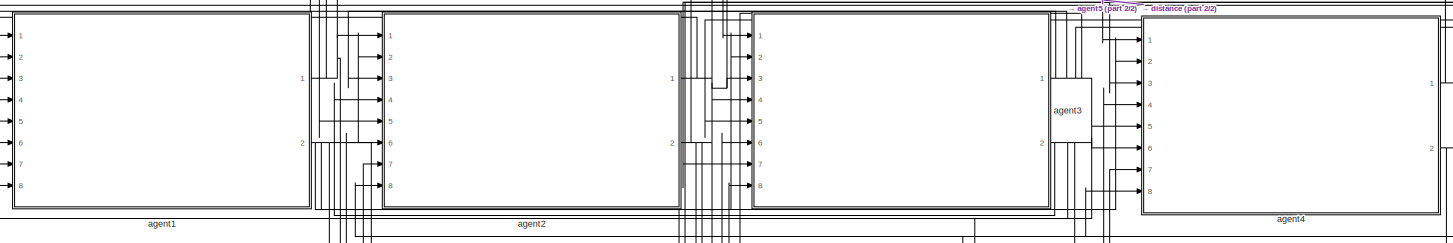
[diagram: root canvas - part 1/2, top center region]
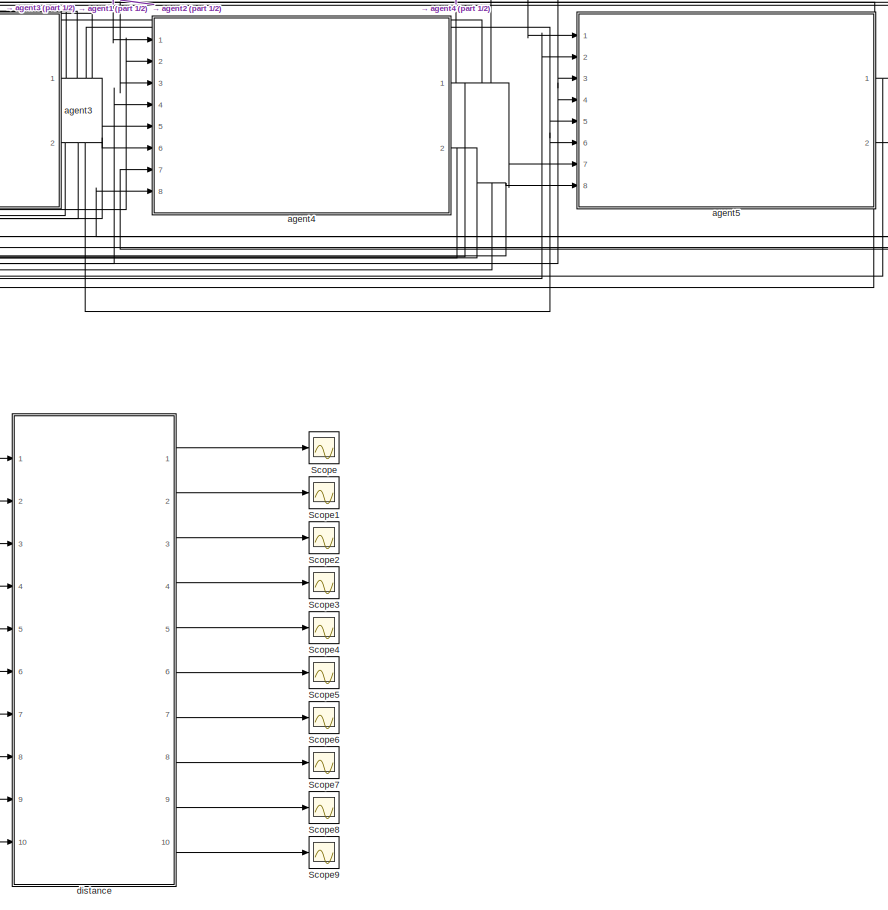
[diagram: root canvas - part 2/2, right side, full height]
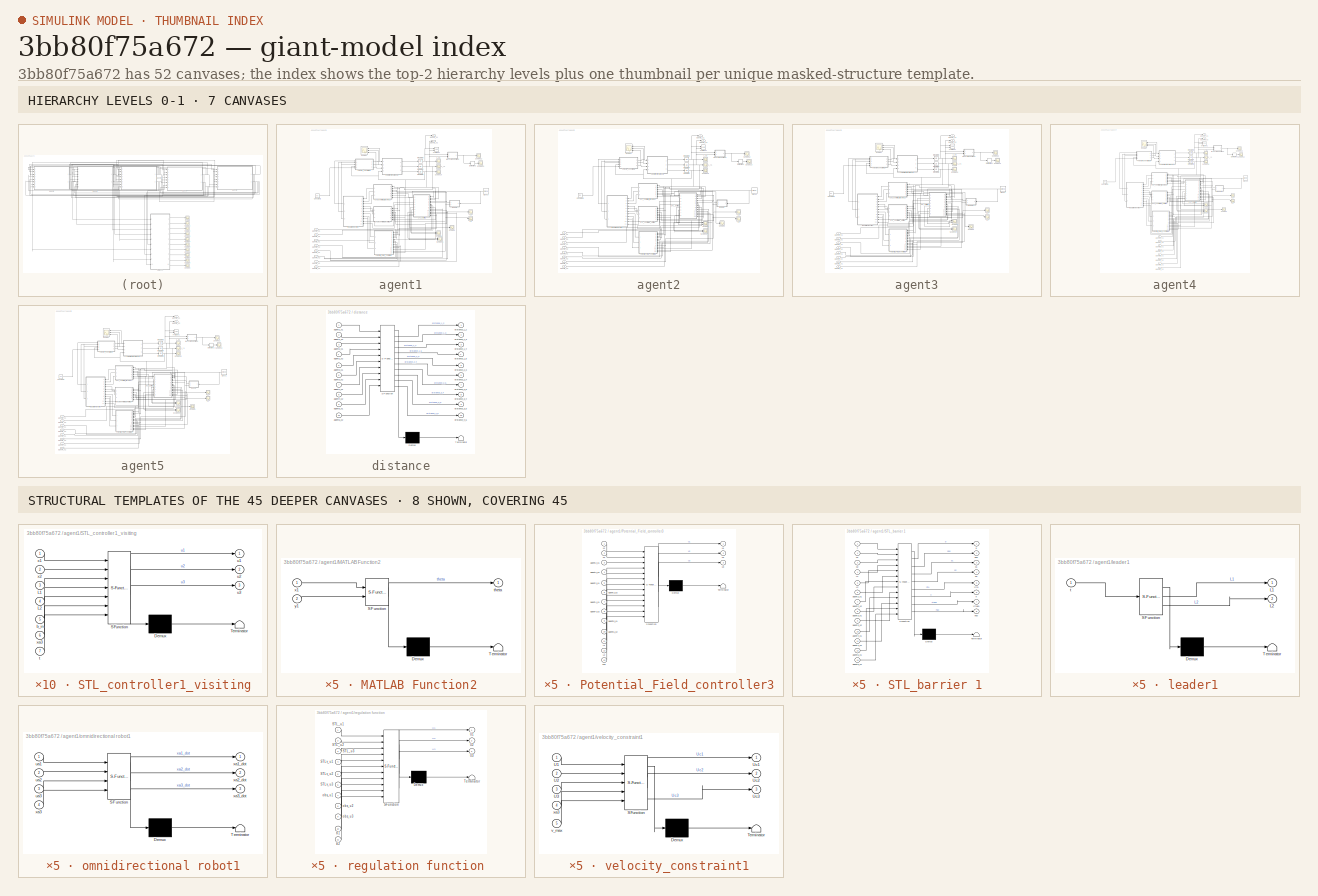
[diagram: thumbnail index - top-2 hierarchy levels (7 canvases) + 8 structural-template representatives of the remaining 45 canvases]
MODEL slx_3bb80f75a672
KIND model
CONFIG AbsTol = auto
CONFIG EnableMultiTasking = off
CONFIG FixedStep = 1e-2
CONFIG MaxStep = auto
CONFIG MinStep = auto
CONFIG RelTol = 1e-3
CONFIG SampleTimeConstraint = Unconstrained
CONFIG SolverName = FixedStepAuto
CONFIG StartTime = 0.0
CONFIG StopTime = 60.0
BLOCK [Scope] Scope
  Floating = off
  NumInputPorts = 1
  Ports = [1]
  ScopeSpecificationString = Simulink.scopes.TimeScopeBlockCfg('CurrentConfiguration', extmgr.ConfigurationSet(extmgr.Configuration('Core','General UI',true),extmgr.Configuration('Core','Source UI',true),extmgr.Configuration('Sources','WiredSimulink',true,'DataLoggingVariableName','D1_2','DataLogging',true,'DataLoggingSaveFormat','StructureWithTime'),extmgr.Configuration('Visuals','Time Domain',true,'SerializedDisplays',{stru...<+1431ch>
BLOCK [Scope] Scope1
  Floating = off
  NumInputPorts = 1
  Ports = [1]
  ScopeSpecificationString = Simulink.scopes.TimeScopeBlockCfg('CurrentConfiguration', extmgr.ConfigurationSet(extmgr.Configuration('Core','General UI',true),extmgr.Configuration('Core','Source UI',true),extmgr.Configuration('Sources','WiredSimulink',true,'DataLoggingVariableName','D1_3','DataLogging',true,'DataLoggingSaveFormat','StructureWithTime'),extmgr.Configuration('Visuals','Time Domain',true,'SerializedDisplays',{stru...<+1472ch>
BLOCK [Scope] Scope2
  Floating = off
  NumInputPorts = 1
  Ports = [1]
  ScopeSpecificationString = Simulink.scopes.TimeScopeBlockCfg('CurrentConfiguration', extmgr.ConfigurationSet(extmgr.Configuration('Core','General UI',true),extmgr.Configuration('Core','Source UI',true),extmgr.Configuration('Sources','WiredSimulink',true,'DataLoggingVariableName','D1_4','DataLogging',true,'DataLoggingSaveFormat','StructureWithTime'),extmgr.Configuration('Visuals','Time Domain',true,'SerializedDisplays',{stru...<+1439ch>
BLOCK [Scope] Scope3
  Floating = off
  NumInputPorts = 1
  Ports = [1]
  ScopeSpecificationString = Simulink.scopes.TimeScopeBlockCfg('CurrentConfiguration', extmgr.ConfigurationSet(extmgr.Configuration('Core','General UI',true),extmgr.Configuration('Core','Source UI',true),extmgr.Configuration('Sources','WiredSimulink',true,'DataLoggingVariableName','D1_5','DataLogging',true,'DataLoggingSaveFormat','StructureWithTime'),extmgr.Configuration('Visuals','Time Domain',true,'SerializedDisplays',{stru...<+1439ch>
BLOCK [Scope] Scope4
  Floating = off
  NumInputPorts = 1
  Ports = [1]
  ScopeSpecificationString = Simulink.scopes.TimeScopeBlockCfg('CurrentConfiguration', extmgr.ConfigurationSet(extmgr.Configuration('Core','General UI',true),extmgr.Configuration('Core','Source UI',true),extmgr.Configuration('Sources','WiredSimulink',true,'DataLoggingVariableName','D2_3','DataLogging',true,'DataLoggingSaveFormat','StructureWithTime'),extmgr.Configuration('Visuals','Time Domain',true,'SerializedDisplays',{stru...<+1468ch>
BLOCK [Scope] Scope5
  Floating = off
  NumInputPorts = 1
  Ports = [1]
  ScopeSpecificationString = Simulink.scopes.TimeScopeBlockCfg('CurrentConfiguration', extmgr.ConfigurationSet(extmgr.Configuration('Core','General UI',true),extmgr.Configuration('Core','Source UI',true),extmgr.Configuration('Sources','WiredSimulink',true,'DataLoggingVariableName','D2_4','DataLogging',true,'DataLoggingSaveFormat','StructureWithTime'),extmgr.Configuration('Visuals','Time Domain',true,'SerializedDisplays',{stru...<+1443ch>
BLOCK [Scope] Scope6
  Floating = off
  NumInputPorts = 1
  Ports = [1]
  ScopeSpecificationString = Simulink.scopes.TimeScopeBlockCfg('CurrentConfiguration', extmgr.ConfigurationSet(extmgr.Configuration('Core','General UI',true),extmgr.Configuration('Core','Source UI',true),extmgr.Configuration('Sources','WiredSimulink',true,'DataLoggingVariableName','D2_5','DataLogging',true,'DataLoggingSaveFormat','StructureWithTime'),extmgr.Configuration('Visuals','Time Domain',true,'SerializedDisplays',{stru...<+1439ch>
BLOCK [Scope] Scope7
  Floating = off
  NumInputPorts = 1
  Ports = [1]
  ScopeSpecificationString = Simulink.scopes.TimeScopeBlockCfg('CurrentConfiguration', extmgr.ConfigurationSet(extmgr.Configuration('Core','General UI',true),extmgr.Configuration('Core','Source UI',true),extmgr.Configuration('Sources','WiredSimulink',true,'DataLoggingVariableName','D3_4','DataLogging',true,'DataLoggingSaveFormat','StructureWithTime'),extmgr.Configuration('Visuals','Time Domain',true,'SerializedDisplays',{stru...<+1439ch>
BLOCK [Scope] Scope8
  Floating = off
  NumInputPorts = 1
  Ports = [1]
  ScopeSpecificationString = Simulink.scopes.TimeScopeBlockCfg('CurrentConfiguration', extmgr.ConfigurationSet(extmgr.Configuration('Core','General UI',true),extmgr.Configuration('Core','Source UI',true),extmgr.Configuration('Sources','WiredSimulink',true,'DataLoggingVariableName','D3_5','DataLogging',true,'DataLoggingSaveFormat','StructureWithTime'),extmgr.Configuration('Visuals','Time Domain',true,'SerializedDisplays',{stru...<+1445ch>
BLOCK [Scope] Scope9
  Floating = off
  NumInputPorts = 1
  Ports = [1]
  ScopeSpecificationString = Simulink.scopes.TimeScopeBlockCfg('CurrentConfiguration', extmgr.ConfigurationSet(extmgr.Configuration('Core','General UI',true),extmgr.Configuration('Core','Source UI',true),extmgr.Configuration('Sources','WiredSimulink',true,'DataLoggingVariableName','D4_5','DataLogging',true,'DataLoggingSaveFormat','StructureWithTime'),extmgr.Configuration('Visuals','Time Domain',true,'SerializedDisplays',{stru...<+1445ch>
BLOCK [SubSystem] agent1
  Ports = [8, 2]
  RequestExecContextInheritance = off
BLOCK [Scope] agent1/1_a1
  Floating = off
  NumInputPorts = 1
  Ports = [1]
  ScopeSpecificationString = Simulink.scopes.TimeScopeBlockCfg('CurrentConfiguration', extmgr.ConfigurationSet(extmgr.Configuration('Core','General UI',true),extmgr.Configuration('Core','Source UI',true),extmgr.Configuration('Sources','WiredSimulink',true,'DataLogging',true,'DataLoggingVariableName','agent1_x1','DataLoggingSaveFormat','StructureWithTime'),extmgr.Configuration('Visuals','Time Domain',true,'SerializedDisplays',...<+1467ch>
BLOCK [Scope] agent1/1_y1
  Floating = off
  NumInputPorts = 1
  Ports = [1]
  ScopeSpecificationString = Simulink.scopes.TimeScopeBlockCfg('CurrentConfiguration', extmgr.ConfigurationSet(extmgr.Configuration('Core','General UI',true),extmgr.Configuration('Core','Source UI',true),extmgr.Configuration('Sources','WiredSimulink',true,'DataLoggingVariableName','agent1_x2','DataLogging',true,'DataLoggingSaveFormat','StructureWithTime'),extmgr.Configuration('Visuals','Time Domain',true,'SerializedDisplays',...<+1471ch>
BLOCK [Clock] agent1/Clock1
  DisplayTime = on
BLOCK [Constant] agent1/Constant1
  Value = 50
BLOCK [Derivative] agent1/Derivative1
BLOCK [Integrator] agent1/Integrator3
  Ports = [1, 1]
BLOCK [Integrator] agent1/Integrator4
  InitialCondition = 10
  Ports = [1, 1]
BLOCK [Integrator] agent1/Integrator5
  Ports = [1, 1]
BLOCK [Scope] agent1/L1
  Floating = off
  NumInputPorts = 1
  Ports = [1]
  ScopeSpecificationString = Simulink.scopes.TimeScopeBlockCfg('CurrentConfiguration', extmgr.ConfigurationSet(extmgr.Configuration('Core','General UI',true),extmgr.Configuration('Core','Source UI',true),extmgr.Configuration('Sources','WiredSimulink',true,'DataLoggingVariableName','agent1_L1','DataLogging',true,'DataLoggingSaveFormat','StructureWithTime'),extmgr.Configuration('Visuals','Time Domain',true,'SerializedDisplays',...<+1450ch>
BLOCK [Scope] agent1/L2
  Floating = off
  NumInputPorts = 1
  Ports = [1]
  ScopeSpecificationString = Simulink.scopes.TimeScopeBlockCfg('CurrentConfiguration', extmgr.ConfigurationSet(extmgr.Configuration('Core','General UI',true),extmgr.Configuration('Core','Source UI',true),extmgr.Configuration('Sources','WiredSimulink',true,'DataLoggingVariableName','agent1_L2','DataLogging',true,'DataLoggingSaveFormat','StructureWithTime'),extmgr.Configuration('Visuals','Time Domain',true,'SerializedDisplays',...<+1413ch>
BLOCK [SubSystem] agent1/MATLAB Function2
  ErrorFcn = Stateflow.Translate.translate
  PermitHierarchicalResolution = ExplicitOnly
  Ports = [2, 1]
  RequestExecContextInheritance = off
  SFBlockType = MATLAB Function
  TreatAsAtomicUnit = on
BLOCK [Demux] agent1/MATLAB Function2/ Demux 
  Outputs = 1
  Ports = [1, 1]
BLOCK [S-Function] agent1/MATLAB Function2/ SFunction 
  EnableBusSupport = on
  FunctionName = sf_sfun
  PortCounts = [2 2]
  Ports = [2, 2]
  SFcnIsStateOwnerBlock = off
  SFunctionDeploymentMode = off
  Tag = Stateflow S-Function 43
BLOCK [Terminator] agent1/MATLAB Function2/ Terminator 
BLOCK [Outport] agent1/MATLAB Function2/theta
  VectorParamsAs1DForOutWhenUnconnected = off
BLOCK [Inport] agent1/MATLAB Function2/x1
BLOCK [Inport] agent1/MATLAB Function2/y1
  Port = 2
BLOCK [SubSystem] agent1/Potential_Field_controller3
  ErrorFcn = Stateflow.Translate.translate
  PermitHierarchicalResolution = ExplicitOnly
  Ports = [13, 3]
  RequestExecContextInheritance = off
  SFBlockType = MATLAB Function
  TreatAsAtomicUnit = on
BLOCK [Demux] agent1/Potential_Field_controller3/ Demux 
  Outputs = 1
  Ports = [1, 1]
BLOCK [S-Function] agent1/Potential_Field_controller3/ SFunction 
  EnableBusSupport = on
  FunctionName = sf_sfun
  PortCounts = [13 4]
  Ports = [13, 4]
  SFcnIsStateOwnerBlock = off
  SFunctionDeploymentMode = off
  Tag = Stateflow S-Function 44
BLOCK [Terminator] agent1/Potential_Field_controller3/ Terminator 
BLOCK [Inport] agent1/Potential_Field_controller3/L1
  Port = 11
BLOCK [Inport] agent1/Potential_Field_controller3/L2
  Port = 12
BLOCK [Inport] agent1/Potential_Field_controller3/agent2_x1
  Port = 3
BLOCK [Inport] agent1/Potential_Field_controller3/agent2_x2
  Port = 4
BLOCK [Inport] agent1/Potential_Field_controller3/agent3_x1
  Port = 5
BLOCK [Inport] agent1/Potential_Field_controller3/agent3_x2
  Port = 6
BLOCK [Inport] agent1/Potential_Field_controller3/agent4_x1
  Port = 7
BLOCK [Inport] agent1/Potential_Field_controller3/agent4_x2
  Port = 8
BLOCK [Inport] agent1/Potential_Field_controller3/agent5_x1
  Port = 9
BLOCK [Inport] agent1/Potential_Field_controller3/agent5_x2
  Port = 10
BLOCK [Outport] agent1/Potential_Field_controller3/u1
BLOCK [Outport] agent1/Potential_Field_controller3/u2
  Port = 2
BLOCK [Outport] agent1/Potential_Field_controller3/u3
  Port = 3
BLOCK [Inport] agent1/Potential_Field_controller3/x1
BLOCK [Inport] agent1/Potential_Field_controller3/x2
  Port = 2
BLOCK [Inport] agent1/Potential_Field_controller3/xa3
  Port = 13
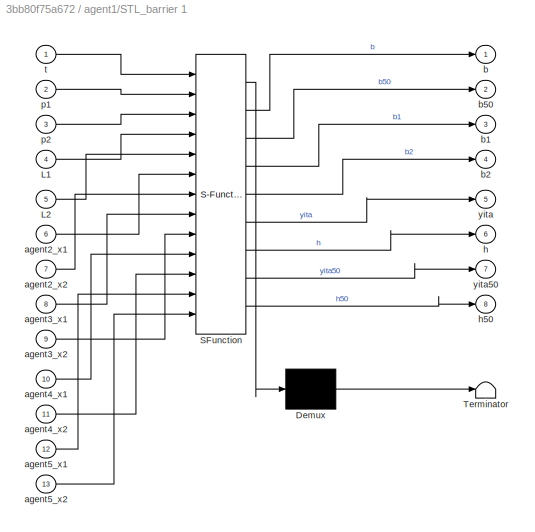
BLOCK [SubSystem] agent1/STL_barrier 1
  ErrorFcn = Stateflow.Translate.translate
  PermitHierarchicalResolution = ExplicitOnly
  Ports = [13, 8]
  RequestExecContextInheritance = off
  SFBlockType = MATLAB Function
  TreatAsAtomicUnit = on
BLOCK [Demux] agent1/STL_barrier 1/ Demux 
  Outputs = 1
  Ports = [1, 1]
BLOCK [S-Function] agent1/STL_barrier 1/ SFunction 
  EnableBusSupport = on
  FunctionName = sf_sfun
  PortCounts = [13 9]
  Ports = [13, 9]
  SFcnIsStateOwnerBlock = off
  SFunctionDeploymentMode = off
  Tag = Stateflow S-Function 45
BLOCK [Terminator] agent1/STL_barrier 1/ Terminator 
BLOCK [Inport] agent1/STL_barrier 1/L1
  Port = 4
BLOCK [Inport] agent1/STL_barrier 1/L2
  Port = 5
BLOCK [Inport] agent1/STL_barrier 1/agent2_x1
  Port = 6
BLOCK [Inport] agent1/STL_barrier 1/agent2_x2
  Port = 7
BLOCK [Inport] agent1/STL_barrier 1/agent3_x1
  Port = 8
BLOCK [Inport] agent1/STL_barrier 1/agent3_x2
  Port = 9
BLOCK [Inport] agent1/STL_barrier 1/agent4_x1
  Port = 10
BLOCK [Inport] agent1/STL_barrier 1/agent4_x2
  Port = 11
BLOCK [Inport] agent1/STL_barrier 1/agent5_x1
  Port = 12
BLOCK [Inport] agent1/STL_barrier 1/agent5_x2
  Port = 13
BLOCK [Outport] agent1/STL_barrier 1/b
BLOCK [Outport] agent1/STL_barrier 1/b1
  Port = 3
BLOCK [Outport] agent1/STL_barrier 1/b2
  Port = 4
BLOCK [Outport] agent1/STL_barrier 1/b50
  Port = 2
BLOCK [Outport] agent1/STL_barrier 1/h
  Port = 6
  VectorParamsAs1DForOutWhenUnconnected = off
BLOCK [Outport] agent1/STL_barrier 1/h50
  Port = 8
BLOCK [Inport] agent1/STL_barrier 1/p1
  Port = 2
BLOCK [Inport] agent1/STL_barrier 1/p2
  Port = 3
BLOCK [Inport] agent1/STL_barrier 1/t
BLOCK [Outport] agent1/STL_barrier 1/yita
  Port = 5
  VectorParamsAs1DForOutWhenUnconnected = off
BLOCK [Outport] agent1/STL_barrier 1/yita50
  Port = 7
BLOCK [SubSystem] agent1/STL_controller1_visiting
  ErrorFcn = Stateflow.Translate.translate
  PermitHierarchicalResolution = ExplicitOnly
  Ports = [7, 3]
  RequestExecContextInheritance = off
  SFBlockType = MATLAB Function
  TreatAsAtomicUnit = on
BLOCK [Demux] agent1/STL_controller1_visiting/ Demux 
  Outputs = 1
  Ports = [1, 1]
BLOCK [S-Function] agent1/STL_controller1_visiting/ SFunction 
  EnableBusSupport = on
  FunctionName = sf_sfun
  PortCounts = [7 4]
  Ports = [7, 4]
  SFcnIsStateOwnerBlock = off
  SFunctionDeploymentMode = off
  Tag = Stateflow S-Function 46
BLOCK [Terminator] agent1/STL_controller1_visiting/ Terminator 
BLOCK [Inport] agent1/STL_controller1_visiting/L1
  Port = 3
BLOCK [Inport] agent1/STL_controller1_visiting/L2
  Port = 4
BLOCK [Inport] agent1/STL_controller1_visiting/b_in
  Port = 5
BLOCK [Inport] agent1/STL_controller1_visiting/t
  Port = 7
BLOCK [Outport] agent1/STL_controller1_visiting/u1
BLOCK [Outport] agent1/STL_controller1_visiting/u2
  Port = 2
BLOCK [Outport] agent1/STL_controller1_visiting/u3
  Port = 3
BLOCK [Inport] agent1/STL_controller1_visiting/x1
BLOCK [Inport] agent1/STL_controller1_visiting/x2
  Port = 2
BLOCK [Inport] agent1/STL_controller1_visiting/xa3
  Port = 6
BLOCK [SubSystem] agent1/STL_controller_tracking1
  ErrorFcn = Stateflow.Translate.translate
  PermitHierarchicalResolution = ExplicitOnly
  Ports = [7, 3]
  RequestExecContextInheritance = off
  SFBlockType = MATLAB Function
  TreatAsAtomicUnit = on
BLOCK [Demux] agent1/STL_controller_tracking1/ Demux 
  Outputs = 1
  Ports = [1, 1]
BLOCK [S-Function] agent1/STL_controller_tracking1/ SFunction 
  EnableBusSupport = on
  FunctionName = sf_sfun
  PortCounts = [7 4]
  Ports = [7, 4]
  SFcnIsStateOwnerBlock = off
  SFunctionDeploymentMode = off
  Tag = Stateflow S-Function 47
BLOCK [Terminator] agent1/STL_controller_tracking1/ Terminator 
BLOCK [Inport] agent1/STL_controller_tracking1/L1
  Port = 3
BLOCK [Inport] agent1/STL_controller_tracking1/L2
  Port = 4
BLOCK [Inport] agent1/STL_controller_tracking1/b_in
  Port = 5
BLOCK [Inport] agent1/STL_controller_tracking1/t
  Port = 7
BLOCK [Outport] agent1/STL_controller_tracking1/u1
BLOCK [Outport] agent1/STL_controller_tracking1/u2
  Port = 2
BLOCK [Outport] agent1/STL_controller_tracking1/u3
  Port = 3
BLOCK [Inport] agent1/STL_controller_tracking1/x1
BLOCK [Inport] agent1/STL_controller_tracking1/x2
  Port = 2
BLOCK [Inport] agent1/STL_controller_tracking1/xa3
  Port = 6
BLOCK [Scope] agent1/Scope10
  Floating = off
  NumInputPorts = 1
  Ports = [1]
  ScopeSpecificationString = Simulink.scopes.TimeScopeBlockCfg('CurrentConfiguration', extmgr.ConfigurationSet(extmgr.Configuration('Core','General UI',true),extmgr.Configuration('Core','Source UI',true),extmgr.Configuration('Sources','WiredSimulink',true,'DataLoggingVariableName','ScopeData5'),extmgr.Configuration('Visuals','Time Domain',true,'SerializedDisplays',{struct('MinYLimReal','-0.05134','MaxYLimReal','0.15798','YLab...<+1448ch>  <repeated x5 — deduplicated; at blocks: Scope10>
BLOCK [Scope] agent1/Scope11
  Floating = off
  NumInputPorts = 2
  Ports = [2]
  ScopeSpecificationString = Simulink.scopes.TimeScopeBlockCfg('CurrentConfiguration', extmgr.ConfigurationSet(extmgr.Configuration('Core','General UI',true),extmgr.Configuration('Core','Source UI',true),extmgr.Configuration('Sources','WiredSimulink',true,'DataLoggingVariableName','agent1_gamma_h_visiting','DataLogging',true,'DataLoggingSaveFormat','StructureWithTime'),extmgr.Configuration('Visuals','Time Domain',true,'Serial...<+1622ch>
BLOCK [Scope] agent1/Scope12
  Floating = off
  NumInputPorts = 1
  Ports = [1]
  ScopeSpecificationString = Simulink.scopes.TimeScopeBlockCfg('CurrentConfiguration', extmgr.ConfigurationSet(extmgr.Configuration('Core','General UI',true),extmgr.Configuration('Core','Source UI',true),extmgr.Configuration('Sources','WiredSimulink',true,'DataLoggingVariableName','ScopeData7'),extmgr.Configuration('Visuals','Time Domain',true,'SerializedDisplays',{struct('MinYLimReal','-1.76715','MaxYLimReal','0.19635','YLab...<+1439ch>  <repeated x5 — deduplicated; at blocks: Scope12>
BLOCK [Scope] agent1/Scope13
  Floating = off
  NumInputPorts = 1
  Ports = [1]
  ScopeSpecificationString = Simulink.scopes.TimeScopeBlockCfg('CurrentConfiguration', extmgr.ConfigurationSet(extmgr.Configuration('Core','General UI',true),extmgr.Configuration('Core','Source UI',true),extmgr.Configuration('Sources','WiredSimulink',true,'DataLoggingVariableName','ScopeData8'),extmgr.Configuration('Visuals','Time Domain',true,'SerializedDisplays',{struct('MinYLimReal','-7436.0344','MaxYLimReal','66924.30119'...<+1469ch>  <repeated x5 — deduplicated; at blocks: Scope13>
BLOCK [Scope] agent1/Scope7
  Floating = off
  NumInputPorts = 3
  Ports = [3]
  ScopeSpecificationString = Simulink.scopes.TimeScopeBlockCfg('CurrentConfiguration', extmgr.ConfigurationSet(extmgr.Configuration('Core','General UI',true),extmgr.Configuration('Core','Source UI',true),extmgr.Configuration('Sources','WiredSimulink',true,'DataLoggingVariableName','agent1_U3','DataLogging',true,'DataLoggingSaveFormat','StructureWithTime'),extmgr.Configuration('Visuals','Time Domain',true,'SerializedDisplays',...<+1614ch>
BLOCK [Scope] agent1/Scope8
  Floating = off
  NumInputPorts = 2
  Ports = [2]
  ScopeSpecificationString = Simulink.scopes.TimeScopeBlockCfg('CurrentConfiguration', extmgr.ConfigurationSet(extmgr.Configuration('Core','General UI',true),extmgr.Configuration('Core','Source UI',true),extmgr.Configuration('Sources','WiredSimulink',true,'DataLoggingVariableName','agent1_gamma_h_tracking','DataLogging',true,'DataLoggingSaveFormat','StructureWithTime'),extmgr.Configuration('Visuals','Time Domain',true,'Serial...<+1937ch>
BLOCK [Scope] agent1/Scope9
  Floating = off
  NumInputPorts = 1
  Ports = [1]
  ScopeSpecificationString = Simulink.scopes.TimeScopeBlockCfg('CurrentConfiguration', extmgr.ConfigurationSet(extmgr.Configuration('Core','General UI',true),extmgr.Configuration('Core','Source UI',true),extmgr.Configuration('Sources','WiredSimulink',true),extmgr.Configuration('Visuals','Time Domain',true,'SerializedDisplays',{struct('MinYLimReal','-86.93912','MaxYLimReal','9.6599','YLabelReal','','MinYLimMag','0.00000','MaxY...<+1412ch>  <repeated x5 — deduplicated; at blocks: Scope9>
BLOCK [Reference] agent1/XY Graph1  REF=simulink/Sinks/XY Graph
  Ports = [2]
  SourceBlock = simulink/Sinks/XY Graph
  SourceProductBaseCode = SL
  SourceType = XY scope.
BLOCK [Outport] agent1/agent1_x1
BLOCK [Outport] agent1/agent1_x2
  Port = 2
BLOCK [Inport] agent1/agent2_x1
BLOCK [Inport] agent1/agent2_x2
  Port = 2
BLOCK [Inport] agent1/agent3_x1
  Port = 3
BLOCK [Inport] agent1/agent3_x2
  Port = 4
BLOCK [Inport] agent1/agent4_x1
  Port = 5
BLOCK [Inport] agent1/agent4_x2
  Port = 6
BLOCK [Inport] agent1/agent5_x1
  Port = 7
BLOCK [Inport] agent1/agent5_x2
  Port = 8
BLOCK [SubSystem] agent1/leader1
  ErrorFcn = Stateflow.Translate.translate
  PermitHierarchicalResolution = ExplicitOnly
  Ports = [1, 2]
  RequestExecContextInheritance = off
  SFBlockType = MATLAB Function
  TreatAsAtomicUnit = on
BLOCK [Demux] agent1/leader1/ Demux 
  Outputs = 1
  Ports = [1, 1]
BLOCK [S-Function] agent1/leader1/ SFunction 
  EnableBusSupport = on
  FunctionName = sf_sfun
  PortCounts = [1 3]
  Ports = [1, 3]
  SFcnIsStateOwnerBlock = off
  SFunctionDeploymentMode = off
  Tag = Stateflow S-Function 48
BLOCK [Terminator] agent1/leader1/ Terminator 
BLOCK [Outport] agent1/leader1/L1
BLOCK [Outport] agent1/leader1/L2
  Port = 2
BLOCK [Inport] agent1/leader1/t
BLOCK [SubSystem] agent1/omnidirectional robot1
  ErrorFcn = Stateflow.Translate.translate
  PermitHierarchicalResolution = ExplicitOnly
  Ports = [4, 3]
  RequestExecContextInheritance = off
  SFBlockType = MATLAB Function
  TreatAsAtomicUnit = on
BLOCK [Demux] agent1/omnidirectional robot1/ Demux 
  Outputs = 1
  Ports = [1, 1]
BLOCK [S-Function] agent1/omnidirectional robot1/ SFunction 
  EnableBusSupport = on
  FunctionName = sf_sfun
  PortCounts = [4 4]
  Ports = [4, 4]
  SFcnIsStateOwnerBlock = off
  SFunctionDeploymentMode = off
  Tag = Stateflow S-Function 49
BLOCK [Terminator] agent1/omnidirectional robot1/ Terminator 
BLOCK [Inport] agent1/omnidirectional robot1/ua1
BLOCK [Inport] agent1/omnidirectional robot1/ua2
  Port = 2
BLOCK [Inport] agent1/omnidirectional robot1/ua3
  Port = 3
BLOCK [Outport] agent1/omnidirectional robot1/xa1_dot
BLOCK [Outport] agent1/omnidirectional robot1/xa2_dot
  Port = 2
BLOCK [Inport] agent1/omnidirectional robot1/xa3
  Port = 4
BLOCK [Outport] agent1/omnidirectional robot1/xa3_dot
  Port = 3
BLOCK [SubSystem] agent1/regulation function 
  ErrorFcn = Stateflow.Translate.translate
  PermitHierarchicalResolution = ExplicitOnly
  Ports = [11, 3]
  RequestExecContextInheritance = off
  SFBlockType = MATLAB Function
  TreatAsAtomicUnit = on
BLOCK [Demux] agent1/regulation function / Demux 
  Outputs = 1
  Ports = [1, 1]
BLOCK [S-Function] agent1/regulation function / SFunction 
  EnableBusSupport = on
  FunctionName = sf_sfun
  PortCounts = [11 4]
  Ports = [11, 4]
  SFcnIsStateOwnerBlock = off
  SFunctionDeploymentMode = off
  Tag = Stateflow S-Function 50
BLOCK [Terminator] agent1/regulation function / Terminator 
BLOCK [Inport] agent1/regulation function /STL_u1
BLOCK [Inport] agent1/regulation function /STL_u2
  Port = 2
BLOCK [Inport] agent1/regulation function /STL_u3
  Port = 3
BLOCK [Inport] agent1/regulation function /STLv_u1
  Port = 4
BLOCK [Inport] agent1/regulation function /STLv_u2
  Port = 5
BLOCK [Inport] agent1/regulation function /STLv_u3
  Port = 6
BLOCK [Outport] agent1/regulation function /U1
BLOCK [Outport] agent1/regulation function /U2
  Port = 2
BLOCK [Outport] agent1/regulation function /U3
  Port = 3
BLOCK [Inport] agent1/regulation function /b1
  Port = 10
BLOCK [Inport] agent1/regulation function /b2
  Port = 11
BLOCK [Inport] agent1/regulation function /obs_u1
  Port = 7
BLOCK [Inport] agent1/regulation function /obs_u2
  Port = 8
BLOCK [Inport] agent1/regulation function /obs_u3
  Port = 9
BLOCK [SubSystem] agent1/velocity_constraint1
  ErrorFcn = Stateflow.Translate.translate
  PermitHierarchicalResolution = ExplicitOnly
  Ports = [5, 3]
  RequestExecContextInheritance = off
  SFBlockType = MATLAB Function
  TreatAsAtomicUnit = on
BLOCK [Demux] agent1/velocity_constraint1/ Demux 
  Outputs = 1
  Ports = [1, 1]
BLOCK [S-Function] agent1/velocity_constraint1/ SFunction 
  EnableBusSupport = on
  FunctionName = sf_sfun
  PortCounts = [5 4]
  Ports = [5, 4]
  SFcnIsStateOwnerBlock = off
  SFunctionDeploymentMode = off
  Tag = Stateflow S-Function 51
BLOCK [Terminator] agent1/velocity_constraint1/ Terminator 
BLOCK [Inport] agent1/velocity_constraint1/U1
BLOCK [Inport] agent1/velocity_constraint1/U2
  Port = 2
BLOCK [Inport] agent1/velocity_constraint1/U3
  Port = 3
BLOCK [Outport] agent1/velocity_constraint1/Uc1
BLOCK [Outport] agent1/velocity_constraint1/Uc2
  Port = 2
BLOCK [Outport] agent1/velocity_constraint1/Uc3
  Port = 3
BLOCK [Inport] agent1/velocity_constraint1/v_max
  Port = 5
BLOCK [Inport] agent1/velocity_constraint1/xa3
  Port = 4
BLOCK [SubSystem] agent2
  Ports = [8, 2]
  RequestExecContextInheritance = off
BLOCK [Scope] agent2/1_a1
  Floating = off
  NumInputPorts = 1
  Ports = [1]
  ScopeSpecificationString = Simulink.scopes.TimeScopeBlockCfg('CurrentConfiguration', extmgr.ConfigurationSet(extmgr.Configuration('Core','General UI',true),extmgr.Configuration('Core','Source UI',true),extmgr.Configuration('Sources','WiredSimulink',true,'DataLogging',true,'DataLoggingVariableName','agent2_x1','DataLoggingSaveFormat','StructureWithTime'),extmgr.Configuration('Visuals','Time Domain',true,'SerializedDisplays',...<+1467ch>
BLOCK [Scope] agent2/1_y1
  Floating = off
  NumInputPorts = 1
  Ports = [1]
  ScopeSpecificationString = Simulink.scopes.TimeScopeBlockCfg('CurrentConfiguration', extmgr.ConfigurationSet(extmgr.Configuration('Core','General UI',true),extmgr.Configuration('Core','Source UI',true),extmgr.Configuration('Sources','WiredSimulink',true,'DataLoggingVariableName','agent2_x2','DataLogging',true,'DataLoggingSaveFormat','StructureWithTime'),extmgr.Configuration('Visuals','Time Domain',true,'SerializedDisplays',...<+1467ch>
BLOCK [Clock] agent2/Clock1
  DisplayTime = on
BLOCK [Constant] agent2/Constant1
  Value = 50
BLOCK [Derivative] agent2/Derivative1
BLOCK [Integrator] agent2/Integrator3
  InitialCondition = 10
  Ports = [1, 1]
BLOCK [Integrator] agent2/Integrator4
  Ports = [1, 1]
BLOCK [Integrator] agent2/Integrator5
  Ports = [1, 1]
BLOCK [Scope] agent2/L1
  Floating = off
  NumInputPorts = 1
  Ports = [1]
  ScopeSpecificationString = Simulink.scopes.TimeScopeBlockCfg('CurrentConfiguration', extmgr.ConfigurationSet(extmgr.Configuration('Core','General UI',true),extmgr.Configuration('Core','Source UI',true),extmgr.Configuration('Sources','WiredSimulink',true,'DataLoggingVariableName','agent2_L1','DataLogging',true,'DataLoggingSaveFormat','StructureWithTime'),extmgr.Configuration('Visuals','Time Domain',true,'SerializedDisplays',...<+1442ch>
BLOCK [Scope] agent2/L2
  Floating = off
  NumInputPorts = 1
  Ports = [1]
  ScopeSpecificationString = Simulink.scopes.TimeScopeBlockCfg('CurrentConfiguration', extmgr.ConfigurationSet(extmgr.Configuration('Core','General UI',true),extmgr.Configuration('Core','Source UI',true),extmgr.Configuration('Sources','WiredSimulink',true,'DataLoggingVariableName','agent2_L2','DataLogging',true,'DataLoggingSaveFormat','StructureWithTime'),extmgr.Configuration('Visuals','Time Domain',true,'SerializedDisplays',...<+1421ch>
BLOCK [SubSystem] agent2/MATLAB Function2
  ErrorFcn = Stateflow.Translate.translate
  PermitHierarchicalResolution = ExplicitOnly
  Ports = [2, 1]
  RequestExecContextInheritance = off
  SFBlockType = MATLAB Function
  TreatAsAtomicUnit = on
BLOCK [Demux] agent2/MATLAB Function2/ Demux 
  Outputs = 1
  Ports = [1, 1]
BLOCK [S-Function] agent2/MATLAB Function2/ SFunction 
  EnableBusSupport = on
  FunctionName = sf_sfun
  PortCounts = [2 2]
  Ports = [2, 2]
  SFcnIsStateOwnerBlock = off
  SFunctionDeploymentMode = off
  Tag = Stateflow S-Function 1
BLOCK [Terminator] agent2/MATLAB Function2/ Terminator 
BLOCK [Outport] agent2/MATLAB Function2/theta
  VectorParamsAs1DForOutWhenUnconnected = off
BLOCK [Inport] agent2/MATLAB Function2/x1
BLOCK [Inport] agent2/MATLAB Function2/y1
  Port = 2
BLOCK [SubSystem] agent2/Potential_Field_controller3
  ErrorFcn = Stateflow.Translate.translate
  PermitHierarchicalResolution = ExplicitOnly
  Ports = [13, 3]
  RequestExecContextInheritance = off
  SFBlockType = MATLAB Function
  TreatAsAtomicUnit = on
BLOCK [Demux] agent2/Potential_Field_controller3/ Demux 
  Outputs = 1
  Ports = [1, 1]
BLOCK [S-Function] agent2/Potential_Field_controller3/ SFunction 
  EnableBusSupport = on
  FunctionName = sf_sfun
  PortCounts = [13 4]
  Ports = [13, 4]
  SFcnIsStateOwnerBlock = off
  SFunctionDeploymentMode = off
  Tag = Stateflow S-Function 2
BLOCK [Terminator] agent2/Potential_Field_controller3/ Terminator 
BLOCK [Inport] agent2/Potential_Field_controller3/L1
  Port = 11
BLOCK [Inport] agent2/Potential_Field_controller3/L2
  Port = 12
BLOCK [Inport] agent2/Potential_Field_controller3/agent1_x1
  Port = 3
BLOCK [Inport] agent2/Potential_Field_controller3/agent1_x2
  Port = 4
BLOCK [Inport] agent2/Potential_Field_controller3/agent3_x1
  Port = 5
BLOCK [Inport] agent2/Potential_Field_controller3/agent3_x2
  Port = 6
BLOCK [Inport] agent2/Potential_Field_controller3/agent4_x1
  Port = 7
BLOCK [Inport] agent2/Potential_Field_controller3/agent4_x2
  Port = 8
BLOCK [Inport] agent2/Potential_Field_controller3/agent5_x1
  Port = 9
BLOCK [Inport] agent2/Potential_Field_controller3/agent5_x2
  Port = 10
BLOCK [Outport] agent2/Potential_Field_controller3/u1
BLOCK [Outport] agent2/Potential_Field_controller3/u2
  Port = 2
BLOCK [Outport] agent2/Potential_Field_controller3/u3
  Port = 3
BLOCK [Inport] agent2/Potential_Field_controller3/x1
BLOCK [Inport] agent2/Potential_Field_controller3/x2
  Port = 2
BLOCK [Inport] agent2/Potential_Field_controller3/xa3
  Port = 13
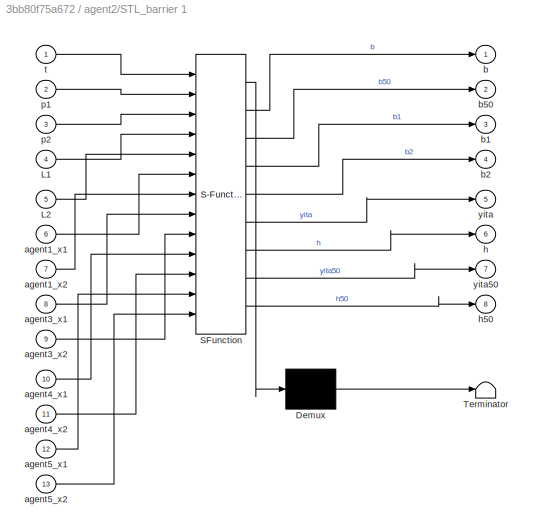
BLOCK [SubSystem] agent2/STL_barrier 1
  ErrorFcn = Stateflow.Translate.translate
  PermitHierarchicalResolution = ExplicitOnly
  Ports = [13, 8]
  RequestExecContextInheritance = off
  SFBlockType = MATLAB Function
  TreatAsAtomicUnit = on
BLOCK [Demux] agent2/STL_barrier 1/ Demux 
  Outputs = 1
  Ports = [1, 1]
BLOCK [S-Function] agent2/STL_barrier 1/ SFunction 
  EnableBusSupport = on
  FunctionName = sf_sfun
  PortCounts = [13 9]
  Ports = [13, 9]
  SFcnIsStateOwnerBlock = off
  SFunctionDeploymentMode = off
  Tag = Stateflow S-Function 3
BLOCK [Terminator] agent2/STL_barrier 1/ Terminator 
BLOCK [Inport] agent2/STL_barrier 1/L1
  Port = 4
BLOCK [Inport] agent2/STL_barrier 1/L2
  Port = 5
BLOCK [Inport] agent2/STL_barrier 1/agent1_x1
  Port = 6
BLOCK [Inport] agent2/STL_barrier 1/agent1_x2
  Port = 7
BLOCK [Inport] agent2/STL_barrier 1/agent3_x1
  Port = 8
BLOCK [Inport] agent2/STL_barrier 1/agent3_x2
  Port = 9
BLOCK [Inport] agent2/STL_barrier 1/agent4_x1
  Port = 10
BLOCK [Inport] agent2/STL_barrier 1/agent4_x2
  Port = 11
BLOCK [Inport] agent2/STL_barrier 1/agent5_x1
  Port = 12
BLOCK [Inport] agent2/STL_barrier 1/agent5_x2
  Port = 13
BLOCK [Outport] agent2/STL_barrier 1/b
BLOCK [Outport] agent2/STL_barrier 1/b1
  Port = 3
BLOCK [Outport] agent2/STL_barrier 1/b2
  Port = 4
BLOCK [Outport] agent2/STL_barrier 1/b50
  Port = 2
BLOCK [Outport] agent2/STL_barrier 1/h
  Port = 6
  VectorParamsAs1DForOutWhenUnconnected = off
BLOCK [Outport] agent2/STL_barrier 1/h50
  Port = 8
BLOCK [Inport] agent2/STL_barrier 1/p1
  Port = 2
BLOCK [Inport] agent2/STL_barrier 1/p2
  Port = 3
BLOCK [Inport] agent2/STL_barrier 1/t
BLOCK [Outport] agent2/STL_barrier 1/yita
  Port = 5
  VectorParamsAs1DForOutWhenUnconnected = off
BLOCK [Outport] agent2/STL_barrier 1/yita50
  Port = 7
BLOCK [SubSystem] agent2/STL_controller1_visiting
  ErrorFcn = Stateflow.Translate.translate
  PermitHierarchicalResolution = ExplicitOnly
  Ports = [7, 3]
  RequestExecContextInheritance = off
  SFBlockType = MATLAB Function
  TreatAsAtomicUnit = on
BLOCK [Demux] agent2/STL_controller1_visiting/ Demux 
  Outputs = 1
  Ports = [1, 1]
BLOCK [S-Function] agent2/STL_controller1_visiting/ SFunction 
  EnableBusSupport = on
  FunctionName = sf_sfun
  PortCounts = [7 4]
  Ports = [7, 4]
  SFcnIsStateOwnerBlock = off
  SFunctionDeploymentMode = off
  Tag = Stateflow S-Function 4
BLOCK [Terminator] agent2/STL_controller1_visiting/ Terminator 
BLOCK [Inport] agent2/STL_controller1_visiting/L1
  Port = 3
BLOCK [Inport] agent2/STL_controller1_visiting/L2
  Port = 4
BLOCK [Inport] agent2/STL_controller1_visiting/b_in
  Port = 5
BLOCK [Inport] agent2/STL_controller1_visiting/t
  Port = 7
BLOCK [Outport] agent2/STL_controller1_visiting/u1
BLOCK [Outport] agent2/STL_controller1_visiting/u2
  Port = 2
BLOCK [Outport] agent2/STL_controller1_visiting/u3
  Port = 3
BLOCK [Inport] agent2/STL_controller1_visiting/x1
BLOCK [Inport] agent2/STL_controller1_visiting/x2
  Port = 2
BLOCK [Inport] agent2/STL_controller1_visiting/xa3
  Port = 6
BLOCK [SubSystem] agent2/STL_controller_tracking1
  ErrorFcn = Stateflow.Translate.translate
  PermitHierarchicalResolution = ExplicitOnly
  Ports = [7, 3]
  RequestExecContextInheritance = off
  SFBlockType = MATLAB Function
  TreatAsAtomicUnit = on
BLOCK [Demux] agent2/STL_controller_tracking1/ Demux 
  Outputs = 1
  Ports = [1, 1]
BLOCK [S-Function] agent2/STL_controller_tracking1/ SFunction 
  EnableBusSupport = on
  FunctionName = sf_sfun
  PortCounts = [7 4]
  Ports = [7, 4]
  SFcnIsStateOwnerBlock = off
  SFunctionDeploymentMode = off
  Tag = Stateflow S-Function 5
BLOCK [Terminator] agent2/STL_controller_tracking1/ Terminator 
BLOCK [Inport] agent2/STL_controller_tracking1/L1
  Port = 3
BLOCK [Inport] agent2/STL_controller_tracking1/L2
  Port = 4
BLOCK [Inport] agent2/STL_controller_tracking1/b_in
  Port = 5
BLOCK [Inport] agent2/STL_controller_tracking1/t
  Port = 7
BLOCK [Outport] agent2/STL_controller_tracking1/u1
BLOCK [Outport] agent2/STL_controller_tracking1/u2
  Port = 2
BLOCK [Outport] agent2/STL_controller_tracking1/u3
  Port = 3
BLOCK [Inport] agent2/STL_controller_tracking1/x1
BLOCK [Inport] agent2/STL_controller_tracking1/x2
  Port = 2
BLOCK [Inport] agent2/STL_controller_tracking1/xa3
  Port = 6
BLOCK [Scope] agent2/Scope10
  Floating = off
  NumInputPorts = 1
  Ports = [1]
BLOCK [Scope] agent2/Scope11
  Floating = off
  NumInputPorts = 2
  Ports = [2]
  ScopeSpecificationString = Simulink.scopes.TimeScopeBlockCfg('CurrentConfiguration', extmgr.ConfigurationSet(extmgr.Configuration('Core','General UI',true),extmgr.Configuration('Core','Source UI',true),extmgr.Configuration('Sources','WiredSimulink',true,'DataLoggingVariableName','agent2_gamma_h_visiting','DataLogging',true,'DataLoggingSaveFormat','StructureWithTime'),extmgr.Configuration('Visuals','Time Domain',true,'Serial...<+1621ch>
BLOCK [Scope] agent2/Scope12
  Floating = off
  NumInputPorts = 1
  Ports = [1]
BLOCK [Scope] agent2/Scope13
  Floating = off
  NumInputPorts = 1
  Ports = [1]
BLOCK [Scope] agent2/Scope7
  Floating = off
  NumInputPorts = 3
  Ports = [3]
  ScopeSpecificationString = Simulink.scopes.TimeScopeBlockCfg('CurrentConfiguration', extmgr.ConfigurationSet(extmgr.Configuration('Core','General UI',true),extmgr.Configuration('Core','Source UI',true),extmgr.Configuration('Sources','WiredSimulink',true,'DataLoggingVariableName','agent2_U3','DataLogging',true,'DataLoggingSaveFormat','StructureWithTime'),extmgr.Configuration('Visuals','Time Domain',true,'SerializedDisplays',...<+1617ch>
BLOCK [Scope] agent2/Scope8
  Floating = off
  NumInputPorts = 2
  Ports = [2]
  ScopeSpecificationString = Simulink.scopes.TimeScopeBlockCfg('CurrentConfiguration', extmgr.ConfigurationSet(extmgr.Configuration('Core','General UI',true),extmgr.Configuration('Core','Source UI',true),extmgr.Configuration('Sources','WiredSimulink',true,'DataLoggingVariableName','agent2_gamma_h_tracking','DataLogging',true,'DataLoggingSaveFormat','StructureWithTime'),extmgr.Configuration('Visuals','Time Domain',true,'Serial...<+1937ch>
BLOCK [Scope] agent2/Scope9
  Floating = off
  NumInputPorts = 1
  Ports = [1]
BLOCK [Reference] agent2/XY Graph1  REF=simulink/Sinks/XY Graph
  Ports = [2]
  SourceBlock = simulink/Sinks/XY Graph
  SourceProductBaseCode = SL
  SourceType = XY scope.
BLOCK [Inport] agent2/agent1_x1
BLOCK [Inport] agent2/agent1_x2
  Port = 2
BLOCK [Outport] agent2/agent2_x1
BLOCK [Outport] agent2/agent2_x2
  Port = 2
BLOCK [Inport] agent2/agent3_x1
  Port = 3
BLOCK [Inport] agent2/agent3_x2
  Port = 4
BLOCK [Inport] agent2/agent4_x1
  Port = 5
BLOCK [Inport] agent2/agent4_x2
  Port = 6
BLOCK [Inport] agent2/agent5_x1
  Port = 7
BLOCK [Inport] agent2/agent5_x2
  Port = 8
BLOCK [SubSystem] agent2/leader1
  ErrorFcn = Stateflow.Translate.translate
  PermitHierarchicalResolution = ExplicitOnly
  Ports = [1, 2]
  RequestExecContextInheritance = off
  SFBlockType = MATLAB Function
  TreatAsAtomicUnit = on
BLOCK [Demux] agent2/leader1/ Demux 
  Outputs = 1
  Ports = [1, 1]
BLOCK [S-Function] agent2/leader1/ SFunction 
  EnableBusSupport = on
  FunctionName = sf_sfun
  PortCounts = [1 3]
  Ports = [1, 3]
  SFcnIsStateOwnerBlock = off
  SFunctionDeploymentMode = off
  Tag = Stateflow S-Function 6
BLOCK [Terminator] agent2/leader1/ Terminator 
BLOCK [Outport] agent2/leader1/L1
BLOCK [Outport] agent2/leader1/L2
  Port = 2
BLOCK [Inport] agent2/leader1/t
BLOCK [SubSystem] agent2/omnidirectional robot1
  ErrorFcn = Stateflow.Translate.translate
  PermitHierarchicalResolution = ExplicitOnly
  Ports = [4, 3]
  RequestExecContextInheritance = off
  SFBlockType = MATLAB Function
  TreatAsAtomicUnit = on
BLOCK [Demux] agent2/omnidirectional robot1/ Demux 
  Outputs = 1
  Ports = [1, 1]
BLOCK [S-Function] agent2/omnidirectional robot1/ SFunction 
  EnableBusSupport = on
  FunctionName = sf_sfun
  PortCounts = [4 4]
  Ports = [4, 4]
  SFcnIsStateOwnerBlock = off
  SFunctionDeploymentMode = off
  Tag = Stateflow S-Function 7
BLOCK [Terminator] agent2/omnidirectional robot1/ Terminator 
BLOCK [Inport] agent2/omnidirectional robot1/ua1
BLOCK [Inport] agent2/omnidirectional robot1/ua2
  Port = 2
BLOCK [Inport] agent2/omnidirectional robot1/ua3
  Port = 3
BLOCK [Outport] agent2/omnidirectional robot1/xa1_dot
BLOCK [Outport] agent2/omnidirectional robot1/xa2_dot
  Port = 2
BLOCK [Inport] agent2/omnidirectional robot1/xa3
  Port = 4
BLOCK [Outport] agent2/omnidirectional robot1/xa3_dot
  Port = 3
BLOCK [SubSystem] agent2/regulation function 
  ErrorFcn = Stateflow.Translate.translate
  PermitHierarchicalResolution = ExplicitOnly
  Ports = [11, 3]
  RequestExecContextInheritance = off
  SFBlockType = MATLAB Function
  TreatAsAtomicUnit = on
BLOCK [Demux] agent2/regulation function / Demux 
  Outputs = 1
  Ports = [1, 1]
BLOCK [S-Function] agent2/regulation function / SFunction 
  EnableBusSupport = on
  FunctionName = sf_sfun
  PortCounts = [11 4]
  Ports = [11, 4]
  SFcnIsStateOwnerBlock = off
  SFunctionDeploymentMode = off
  Tag = Stateflow S-Function 8
BLOCK [Terminator] agent2/regulation function / Terminator 
BLOCK [Inport] agent2/regulation function /STL_u1
BLOCK [Inport] agent2/regulation function /STL_u2
  Port = 2
BLOCK [Inport] agent2/regulation function /STL_u3
  Port = 3
BLOCK [Inport] agent2/regulation function /STLv_u1
  Port = 4
BLOCK [Inport] agent2/regulation function /STLv_u2
  Port = 5
BLOCK [Inport] agent2/regulation function /STLv_u3
  Port = 6
BLOCK [Outport] agent2/regulation function /U1
BLOCK [Outport] agent2/regulation function /U2
  Port = 2
BLOCK [Outport] agent2/regulation function /U3
  Port = 3
BLOCK [Inport] agent2/regulation function /b1
  Port = 10
BLOCK [Inport] agent2/regulation function /b2
  Port = 11
BLOCK [Inport] agent2/regulation function /obs_u1
  Port = 7
BLOCK [Inport] agent2/regulation function /obs_u2
  Port = 8
BLOCK [Inport] agent2/regulation function /obs_u3
  Port = 9
BLOCK [SubSystem] agent2/velocity_constraint1
  ErrorFcn = Stateflow.Translate.translate
  PermitHierarchicalResolution = ExplicitOnly
  Ports = [5, 3]
  RequestExecContextInheritance = off
  SFBlockType = MATLAB Function
  TreatAsAtomicUnit = on
BLOCK [Demux] agent2/velocity_constraint1/ Demux 
  Outputs = 1
  Ports = [1, 1]
BLOCK [S-Function] agent2/velocity_constraint1/ SFunction 
  EnableBusSupport = on
  FunctionName = sf_sfun
  PortCounts = [5 4]
  Ports = [5, 4]
  SFcnIsStateOwnerBlock = off
  SFunctionDeploymentMode = off
  Tag = Stateflow S-Function 9
BLOCK [Terminator] agent2/velocity_constraint1/ Terminator 
BLOCK [Inport] agent2/velocity_constraint1/U1
BLOCK [Inport] agent2/velocity_constraint1/U2
  Port = 2
BLOCK [Inport] agent2/velocity_constraint1/U3
  Port = 3
BLOCK [Outport] agent2/velocity_constraint1/Uc1
BLOCK [Outport] agent2/velocity_constraint1/Uc2
  Port = 2
BLOCK [Outport] agent2/velocity_constraint1/Uc3
  Port = 3
BLOCK [Inport] agent2/velocity_constraint1/v_max
  Port = 5
BLOCK [Inport] agent2/velocity_constraint1/xa3
  Port = 4
BLOCK [SubSystem] agent3
  Ports = [8, 2]
  RequestExecContextInheritance = off
BLOCK [Scope] agent3/1_a1
  Floating = off
  NumInputPorts = 1
  Ports = [1]
  ScopeSpecificationString = Simulink.scopes.TimeScopeBlockCfg('CurrentConfiguration', extmgr.ConfigurationSet(extmgr.Configuration('Core','General UI',true),extmgr.Configuration('Core','Source UI',true),extmgr.Configuration('Sources','WiredSimulink',true,'DataLogging',true,'DataLoggingVariableName','agent3_x1','DataLoggingSaveFormat','StructureWithTime'),extmgr.Configuration('Visuals','Time Domain',true,'SerializedDisplays',...<+1463ch>
BLOCK [Scope] agent3/1_y1
  Floating = off
  NumInputPorts = 1
  Ports = [1]
  ScopeSpecificationString = Simulink.scopes.TimeScopeBlockCfg('CurrentConfiguration', extmgr.ConfigurationSet(extmgr.Configuration('Core','General UI',true),extmgr.Configuration('Core','Source UI',true),extmgr.Configuration('Sources','WiredSimulink',true,'DataLoggingVariableName','agent3_x2','DataLogging',true,'DataLoggingSaveFormat','StructureWithTime'),extmgr.Configuration('Visuals','Time Domain',true,'SerializedDisplays',...<+1471ch>
BLOCK [Clock] agent3/Clock1
  DisplayTime = on
BLOCK [Constant] agent3/Constant1
  Value = 50
BLOCK [Derivative] agent3/Derivative1
BLOCK [Integrator] agent3/Integrator3
  Ports = [1, 1]
BLOCK [Integrator] agent3/Integrator4
  InitialCondition = -10
  Ports = [1, 1]
BLOCK [Integrator] agent3/Integrator5
  Ports = [1, 1]
BLOCK [Scope] agent3/L1
  Floating = off
  NumInputPorts = 1
  Ports = [1]
  ScopeSpecificationString = Simulink.scopes.TimeScopeBlockCfg('CurrentConfiguration', extmgr.ConfigurationSet(extmgr.Configuration('Core','General UI',true),extmgr.Configuration('Core','Source UI',true),extmgr.Configuration('Sources','WiredSimulink',true,'DataLoggingVariableName','agent3_L1','DataLogging',true,'DataLoggingSaveFormat','StructureWithTime'),extmgr.Configuration('Visuals','Time Domain',true,'SerializedDisplays',...<+1450ch>
BLOCK [Scope] agent3/L2
  Floating = off
  NumInputPorts = 1
  Ports = [1]
  ScopeSpecificationString = Simulink.scopes.TimeScopeBlockCfg('CurrentConfiguration', extmgr.ConfigurationSet(extmgr.Configuration('Core','General UI',true),extmgr.Configuration('Core','Source UI',true),extmgr.Configuration('Sources','WiredSimulink',true,'DataLoggingVariableName','agent3_L2','DataLogging',true,'DataLoggingSaveFormat','StructureWithTime'),extmgr.Configuration('Visuals','Time Domain',true,'SerializedDisplays',...<+1413ch>
BLOCK [SubSystem] agent3/MATLAB Function2
  ErrorFcn = Stateflow.Translate.translate
  PermitHierarchicalResolution = ExplicitOnly
  Ports = [2, 1]
  RequestExecContextInheritance = off
  SFBlockType = MATLAB Function
  TreatAsAtomicUnit = on
BLOCK [Demux] agent3/MATLAB Function2/ Demux 
  Outputs = 1
  Ports = [1, 1]
BLOCK [S-Function] agent3/MATLAB Function2/ SFunction 
  EnableBusSupport = on
  FunctionName = sf_sfun
  PortCounts = [2 2]
  Ports = [2, 2]
  SFcnIsStateOwnerBlock = off
  SFunctionDeploymentMode = off
  Tag = Stateflow S-Function 10
BLOCK [Terminator] agent3/MATLAB Function2/ Terminator 
BLOCK [Outport] agent3/MATLAB Function2/theta
  VectorParamsAs1DForOutWhenUnconnected = off
BLOCK [Inport] agent3/MATLAB Function2/x1
BLOCK [Inport] agent3/MATLAB Function2/y1
  Port = 2
BLOCK [SubSystem] agent3/Potential_Field_controller3
  ErrorFcn = Stateflow.Translate.translate
  PermitHierarchicalResolution = ExplicitOnly
  Ports = [13, 3]
  RequestExecContextInheritance = off
  SFBlockType = MATLAB Function
  TreatAsAtomicUnit = on
BLOCK [Demux] agent3/Potential_Field_controller3/ Demux 
  Outputs = 1
  Ports = [1, 1]
BLOCK [S-Function] agent3/Potential_Field_controller3/ SFunction 
  EnableBusSupport = on
  FunctionName = sf_sfun
  PortCounts = [13 4]
  Ports = [13, 4]
  SFcnIsStateOwnerBlock = off
  SFunctionDeploymentMode = off
  Tag = Stateflow S-Function 11
BLOCK [Terminator] agent3/Potential_Field_controller3/ Terminator 
BLOCK [Inport] agent3/Potential_Field_controller3/L1
  Port = 11
BLOCK [Inport] agent3/Potential_Field_controller3/L2
  Port = 12
BLOCK [Inport] agent3/Potential_Field_controller3/agent1_x1
  Port = 3
BLOCK [Inport] agent3/Potential_Field_controller3/agent1_x2
  Port = 4
BLOCK [Inport] agent3/Potential_Field_controller3/agent2_x1
  Port = 5
BLOCK [Inport] agent3/Potential_Field_controller3/agent2_x2
  Port = 6
BLOCK [Inport] agent3/Potential_Field_controller3/agent4_x1
  Port = 7
BLOCK [Inport] agent3/Potential_Field_controller3/agent4_x2
  Port = 8
BLOCK [Inport] agent3/Potential_Field_controller3/agent5_x1
  Port = 9
BLOCK [Inport] agent3/Potential_Field_controller3/agent5_x2
  Port = 10
BLOCK [Outport] agent3/Potential_Field_controller3/u1
BLOCK [Outport] agent3/Potential_Field_controller3/u2
  Port = 2
BLOCK [Outport] agent3/Potential_Field_controller3/u3
  Port = 3
BLOCK [Inport] agent3/Potential_Field_controller3/x1
BLOCK [Inport] agent3/Potential_Field_controller3/x2
  Port = 2
BLOCK [Inport] agent3/Potential_Field_controller3/xa3
  Port = 13
BLOCK [SubSystem] agent3/STL_barrier 1
  ErrorFcn = Stateflow.Translate.translate
  PermitHierarchicalResolution = ExplicitOnly
  Ports = [13, 8]
  RequestExecContextInheritance = off
  SFBlockType = MATLAB Function
  TreatAsAtomicUnit = on
BLOCK [Demux] agent3/STL_barrier 1/ Demux 
  Outputs = 1
  Ports = [1, 1]
BLOCK [S-Function] agent3/STL_barrier 1/ SFunction 
  EnableBusSupport = on
  FunctionName = sf_sfun
  PortCounts = [13 9]
  Ports = [13, 9]
  SFcnIsStateOwnerBlock = off
  SFunctionDeploymentMode = off
  Tag = Stateflow S-Function 12
BLOCK [Terminator] agent3/STL_barrier 1/ Terminator 
BLOCK [Inport] agent3/STL_barrier 1/L1
  Port = 4
BLOCK [Inport] agent3/STL_barrier 1/L2
  Port = 5
BLOCK [Inport] agent3/STL_barrier 1/agent1_x1
  Port = 6
BLOCK [Inport] agent3/STL_barrier 1/agent1_x2
  Port = 7
BLOCK [Inport] agent3/STL_barrier 1/agent2_x1
  Port = 8
BLOCK [Inport] agent3/STL_barrier 1/agent2_x2
  Port = 9
BLOCK [Inport] agent3/STL_barrier 1/agent4_x1
  Port = 10
BLOCK [Inport] agent3/STL_barrier 1/agent4_x2
  Port = 11
BLOCK [Inport] agent3/STL_barrier 1/agent5_x1
  Port = 12
BLOCK [Inport] agent3/STL_barrier 1/agent5_x2
  Port = 13
BLOCK [Outport] agent3/STL_barrier 1/b
BLOCK [Outport] agent3/STL_barrier 1/b1
  Port = 3
BLOCK [Outport] agent3/STL_barrier 1/b2
  Port = 4
BLOCK [Outport] agent3/STL_barrier 1/b50
  Port = 2
BLOCK [Outport] agent3/STL_barrier 1/h
  Port = 6
  VectorParamsAs1DForOutWhenUnconnected = off
BLOCK [Outport] agent3/STL_barrier 1/h50
  Port = 8
BLOCK [Inport] agent3/STL_barrier 1/p1
  Port = 2
BLOCK [Inport] agent3/STL_barrier 1/p2
  Port = 3
BLOCK [Inport] agent3/STL_barrier 1/t
BLOCK [Outport] agent3/STL_barrier 1/yita
  Port = 5
  VectorParamsAs1DForOutWhenUnconnected = off
BLOCK [Outport] agent3/STL_barrier 1/yita50
  Port = 7
BLOCK [SubSystem] agent3/STL_controller1_visiting
  ErrorFcn = Stateflow.Translate.translate
  PermitHierarchicalResolution = ExplicitOnly
  Ports = [7, 3]
  RequestExecContextInheritance = off
  SFBlockType = MATLAB Function
  TreatAsAtomicUnit = on
BLOCK [Demux] agent3/STL_controller1_visiting/ Demux 
  Outputs = 1
  Ports = [1, 1]
BLOCK [S-Function] agent3/STL_controller1_visiting/ SFunction 
  EnableBusSupport = on
  FunctionName = sf_sfun
  PortCounts = [7 4]
  Ports = [7, 4]
  SFcnIsStateOwnerBlock = off
  SFunctionDeploymentMode = off
  Tag = Stateflow S-Function 13
BLOCK [Terminator] agent3/STL_controller1_visiting/ Terminator 
BLOCK [Inport] agent3/STL_controller1_visiting/L1
  Port = 3
BLOCK [Inport] agent3/STL_controller1_visiting/L2
  Port = 4
BLOCK [Inport] agent3/STL_controller1_visiting/b_in
  Port = 5
BLOCK [Inport] agent3/STL_controller1_visiting/t
  Port = 7
BLOCK [Outport] agent3/STL_controller1_visiting/u1
BLOCK [Outport] agent3/STL_controller1_visiting/u2
  Port = 2
BLOCK [Outport] agent3/STL_controller1_visiting/u3
  Port = 3
BLOCK [Inport] agent3/STL_controller1_visiting/x1
BLOCK [Inport] agent3/STL_controller1_visiting/x2
  Port = 2
BLOCK [Inport] agent3/STL_controller1_visiting/xa3
  Port = 6
BLOCK [SubSystem] agent3/STL_controller_tracking1
  ErrorFcn = Stateflow.Translate.translate
  PermitHierarchicalResolution = ExplicitOnly
  Ports = [7, 3]
  RequestExecContextInheritance = off
  SFBlockType = MATLAB Function
  TreatAsAtomicUnit = on
BLOCK [Demux] agent3/STL_controller_tracking1/ Demux 
  Outputs = 1
  Ports = [1, 1]
BLOCK [S-Function] agent3/STL_controller_tracking1/ SFunction 
  EnableBusSupport = on
  FunctionName = sf_sfun
  PortCounts = [7 4]
  Ports = [7, 4]
  SFcnIsStateOwnerBlock = off
  SFunctionDeploymentMode = off
  Tag = Stateflow S-Function 14
BLOCK [Terminator] agent3/STL_controller_tracking1/ Terminator 
BLOCK [Inport] agent3/STL_controller_tracking1/L1
  Port = 3
BLOCK [Inport] agent3/STL_controller_tracking1/L2
  Port = 4
BLOCK [Inport] agent3/STL_controller_tracking1/b_in
  Port = 5
BLOCK [Inport] agent3/STL_controller_tracking1/t
  Port = 7
BLOCK [Outport] agent3/STL_controller_tracking1/u1
BLOCK [Outport] agent3/STL_controller_tracking1/u2
  Port = 2
BLOCK [Outport] agent3/STL_controller_tracking1/u3
  Port = 3
BLOCK [Inport] agent3/STL_controller_tracking1/x1
BLOCK [Inport] agent3/STL_controller_tracking1/x2
  Port = 2
BLOCK [Inport] agent3/STL_controller_tracking1/xa3
  Port = 6
BLOCK [Scope] agent3/Scope10
  Floating = off
  NumInputPorts = 1
  Ports = [1]
BLOCK [Scope] agent3/Scope11
  Floating = off
  NumInputPorts = 2
  Ports = [2]
  ScopeSpecificationString = Simulink.scopes.TimeScopeBlockCfg('CurrentConfiguration', extmgr.ConfigurationSet(extmgr.Configuration('Core','General UI',true),extmgr.Configuration('Core','Source UI',true),extmgr.Configuration('Sources','WiredSimulink',true,'DataLoggingVariableName','agent3_gamma_h_visiting','DataLogging',true,'DataLoggingSaveFormat','StructureWithTime'),extmgr.Configuration('Visuals','Time Domain',true,'Serial...<+1621ch>
BLOCK [Scope] agent3/Scope12
  Floating = off
  NumInputPorts = 1
  Ports = [1]
BLOCK [Scope] agent3/Scope13
  Floating = off
  NumInputPorts = 1
  Ports = [1]
BLOCK [Scope] agent3/Scope7
  Floating = off
  NumInputPorts = 3
  Ports = [3]
  ScopeSpecificationString = Simulink.scopes.TimeScopeBlockCfg('CurrentConfiguration', extmgr.ConfigurationSet(extmgr.Configuration('Core','General UI',true),extmgr.Configuration('Core','Source UI',true),extmgr.Configuration('Sources','WiredSimulink',true,'DataLoggingVariableName','agent3_U3','DataLogging',true,'DataLoggingSaveFormat','StructureWithTime'),extmgr.Configuration('Visuals','Time Domain',true,'SerializedDisplays',...<+1617ch>
BLOCK [Scope] agent3/Scope8
  Floating = off
  NumInputPorts = 2
  Ports = [2]
  ScopeSpecificationString = Simulink.scopes.TimeScopeBlockCfg('CurrentConfiguration', extmgr.ConfigurationSet(extmgr.Configuration('Core','General UI',true),extmgr.Configuration('Core','Source UI',true),extmgr.Configuration('Sources','WiredSimulink',true,'DataLoggingVariableName','agent3_gamma_h_tracking','DataLogging',true,'DataLoggingSaveFormat','StructureWithTime'),extmgr.Configuration('Visuals','Time Domain',true,'Serial...<+1936ch>
BLOCK [Scope] agent3/Scope9
  Floating = off
  NumInputPorts = 1
  Ports = [1]
BLOCK [Reference] agent3/XY Graph1  REF=simulink/Sinks/XY Graph
  Ports = [2]
  SourceBlock = simulink/Sinks/XY Graph
  SourceProductBaseCode = SL
  SourceType = XY scope.
BLOCK [Inport] agent3/agent1_x1
BLOCK [Inport] agent3/agent1_x2
  Port = 2
BLOCK [Inport] agent3/agent2_x1
  Port = 3
BLOCK [Inport] agent3/agent2_x2
  Port = 4
BLOCK [Outport] agent3/agent3_x1
BLOCK [Outport] agent3/agent3_x2
  Port = 2
BLOCK [Inport] agent3/agent4_x1
  Port = 5
BLOCK [Inport] agent3/agent4_x2
  Port = 6
BLOCK [Inport] agent3/agent5_x1
  Port = 7
BLOCK [Inport] agent3/agent5_x2
  Port = 8
BLOCK [SubSystem] agent3/leader1
  ErrorFcn = Stateflow.Translate.translate
  PermitHierarchicalResolution = ExplicitOnly
  Ports = [1, 2]
  RequestExecContextInheritance = off
  SFBlockType = MATLAB Function
  TreatAsAtomicUnit = on
BLOCK [Demux] agent3/leader1/ Demux 
  Outputs = 1
  Ports = [1, 1]
BLOCK [S-Function] agent3/leader1/ SFunction 
  EnableBusSupport = on
  FunctionName = sf_sfun
  PortCounts = [1 3]
  Ports = [1, 3]
  SFcnIsStateOwnerBlock = off
  SFunctionDeploymentMode = off
  Tag = Stateflow S-Function 15
BLOCK [Terminator] agent3/leader1/ Terminator 
BLOCK [Outport] agent3/leader1/L1
BLOCK [Outport] agent3/leader1/L2
  Port = 2
BLOCK [Inport] agent3/leader1/t
BLOCK [SubSystem] agent3/omnidirectional robot1
  ErrorFcn = Stateflow.Translate.translate
  PermitHierarchicalResolution = ExplicitOnly
  Ports = [4, 3]
  RequestExecContextInheritance = off
  SFBlockType = MATLAB Function
  TreatAsAtomicUnit = on
BLOCK [Demux] agent3/omnidirectional robot1/ Demux 
  Outputs = 1
  Ports = [1, 1]
BLOCK [S-Function] agent3/omnidirectional robot1/ SFunction 
  EnableBusSupport = on
  FunctionName = sf_sfun
  PortCounts = [4 4]
  Ports = [4, 4]
  SFcnIsStateOwnerBlock = off
  SFunctionDeploymentMode = off
  Tag = Stateflow S-Function 16
BLOCK [Terminator] agent3/omnidirectional robot1/ Terminator 
BLOCK [Inport] agent3/omnidirectional robot1/ua1
BLOCK [Inport] agent3/omnidirectional robot1/ua2
  Port = 2
BLOCK [Inport] agent3/omnidirectional robot1/ua3
  Port = 3
BLOCK [Outport] agent3/omnidirectional robot1/xa1_dot
BLOCK [Outport] agent3/omnidirectional robot1/xa2_dot
  Port = 2
BLOCK [Inport] agent3/omnidirectional robot1/xa3
  Port = 4
BLOCK [Outport] agent3/omnidirectional robot1/xa3_dot
  Port = 3
BLOCK [SubSystem] agent3/regulation function 
  ErrorFcn = Stateflow.Translate.translate
  PermitHierarchicalResolution = ExplicitOnly
  Ports = [11, 3]
  RequestExecContextInheritance = off
  SFBlockType = MATLAB Function
  TreatAsAtomicUnit = on
BLOCK [Demux] agent3/regulation function / Demux 
  Outputs = 1
  Ports = [1, 1]
BLOCK [S-Function] agent3/regulation function / SFunction 
  EnableBusSupport = on
  FunctionName = sf_sfun
  PortCounts = [11 4]
  Ports = [11, 4]
  SFcnIsStateOwnerBlock = off
  SFunctionDeploymentMode = off
  Tag = Stateflow S-Function 17
BLOCK [Terminator] agent3/regulation function / Terminator 
BLOCK [Inport] agent3/regulation function /STL_u1
BLOCK [Inport] agent3/regulation function /STL_u2
  Port = 2
BLOCK [Inport] agent3/regulation function /STL_u3
  Port = 3
BLOCK [Inport] agent3/regulation function /STLv_u1
  Port = 4
BLOCK [Inport] agent3/regulation function /STLv_u2
  Port = 5
BLOCK [Inport] agent3/regulation function /STLv_u3
  Port = 6
BLOCK [Outport] agent3/regulation function /U1
BLOCK [Outport] agent3/regulation function /U2
  Port = 2
BLOCK [Outport] agent3/regulation function /U3
  Port = 3
BLOCK [Inport] agent3/regulation function /b1
  Port = 10
BLOCK [Inport] agent3/regulation function /b2
  Port = 11
BLOCK [Inport] agent3/regulation function /obs_u1
  Port = 7
BLOCK [Inport] agent3/regulation function /obs_u2
  Port = 8
BLOCK [Inport] agent3/regulation function /obs_u3
  Port = 9
BLOCK [SubSystem] agent3/velocity_constraint1
  ErrorFcn = Stateflow.Translate.translate
  PermitHierarchicalResolution = ExplicitOnly
  Ports = [5, 3]
  RequestExecContextInheritance = off
  SFBlockType = MATLAB Function
  TreatAsAtomicUnit = on
BLOCK [Demux] agent3/velocity_constraint1/ Demux 
  Outputs = 1
  Ports = [1, 1]
BLOCK [S-Function] agent3/velocity_constraint1/ SFunction 
  EnableBusSupport = on
  FunctionName = sf_sfun
  PortCounts = [5 4]
  Ports = [5, 4]
  SFcnIsStateOwnerBlock = off
  SFunctionDeploymentMode = off
  Tag = Stateflow S-Function 18
BLOCK [Terminator] agent3/velocity_constraint1/ Terminator 
BLOCK [Inport] agent3/velocity_constraint1/U1
BLOCK [Inport] agent3/velocity_constraint1/U2
  Port = 2
BLOCK [Inport] agent3/velocity_constraint1/U3
  Port = 3
BLOCK [Outport] agent3/velocity_constraint1/Uc1
BLOCK [Outport] agent3/velocity_constraint1/Uc2
  Port = 2
BLOCK [Outport] agent3/velocity_constraint1/Uc3
  Port = 3
BLOCK [Inport] agent3/velocity_constraint1/v_max
  Port = 5
BLOCK [Inport] agent3/velocity_constraint1/xa3
  Port = 4
BLOCK [SubSystem] agent4
  Ports = [8, 2]
  RequestExecContextInheritance = off
BLOCK [Scope] agent4/1_a1
  Floating = off
  NumInputPorts = 1
  Ports = [1]
  ScopeSpecificationString = Simulink.scopes.TimeScopeBlockCfg('CurrentConfiguration', extmgr.ConfigurationSet(extmgr.Configuration('Core','General UI',true),extmgr.Configuration('Core','Source UI',true),extmgr.Configuration('Sources','WiredSimulink',true,'DataLogging',true,'DataLoggingVariableName','agent4_x1','DataLoggingSaveFormat','StructureWithTime'),extmgr.Configuration('Visuals','Time Domain',true,'SerializedDisplays',...<+1463ch>
BLOCK [Scope] agent4/1_y1
  Floating = off
  NumInputPorts = 1
  Ports = [1]
  ScopeSpecificationString = Simulink.scopes.TimeScopeBlockCfg('CurrentConfiguration', extmgr.ConfigurationSet(extmgr.Configuration('Core','General UI',true),extmgr.Configuration('Core','Source UI',true),extmgr.Configuration('Sources','WiredSimulink',true,'DataLoggingVariableName','agent4_x2','DataLogging',true,'DataLoggingSaveFormat','StructureWithTime'),extmgr.Configuration('Visuals','Time Domain',true,'SerializedDisplays',...<+1471ch>
BLOCK [Clock] agent4/Clock1
  DisplayTime = on
BLOCK [Constant] agent4/Constant1
  Value = 50
BLOCK [Derivative] agent4/Derivative1
BLOCK [Integrator] agent4/Integrator3
  InitialCondition = -10
  Ports = [1, 1]
BLOCK [Integrator] agent4/Integrator4
  Ports = [1, 1]
BLOCK [Integrator] agent4/Integrator5
  Ports = [1, 1]
BLOCK [Scope] agent4/L1
  Floating = off
  NumInputPorts = 1
  Ports = [1]
  ScopeSpecificationString = Simulink.scopes.TimeScopeBlockCfg('CurrentConfiguration', extmgr.ConfigurationSet(extmgr.Configuration('Core','General UI',true),extmgr.Configuration('Core','Source UI',true),extmgr.Configuration('Sources','WiredSimulink',true,'DataLoggingVariableName','agent4_L1','DataLogging',true,'DataLoggingSaveFormat','StructureWithTime'),extmgr.Configuration('Visuals','Time Domain',true,'SerializedDisplays',...<+1450ch>
BLOCK [Scope] agent4/L2
  Floating = off
  NumInputPorts = 1
  Ports = [1]
  ScopeSpecificationString = Simulink.scopes.TimeScopeBlockCfg('CurrentConfiguration', extmgr.ConfigurationSet(extmgr.Configuration('Core','General UI',true),extmgr.Configuration('Core','Source UI',true),extmgr.Configuration('Sources','WiredSimulink',true,'DataLoggingVariableName','agent4_L2','DataLogging',true,'DataLoggingSaveFormat','StructureWithTime'),extmgr.Configuration('Visuals','Time Domain',true,'SerializedDisplays',...<+1413ch>
BLOCK [SubSystem] agent4/MATLAB Function2
  ErrorFcn = Stateflow.Translate.translate
  PermitHierarchicalResolution = ExplicitOnly
  Ports = [2, 1]
  RequestExecContextInheritance = off
  SFBlockType = MATLAB Function
  TreatAsAtomicUnit = on
BLOCK [Demux] agent4/MATLAB Function2/ Demux 
  Outputs = 1
  Ports = [1, 1]
BLOCK [S-Function] agent4/MATLAB Function2/ SFunction 
  EnableBusSupport = on
  FunctionName = sf_sfun
  PortCounts = [2 2]
  Ports = [2, 2]
  SFcnIsStateOwnerBlock = off
  SFunctionDeploymentMode = off
  Tag = Stateflow S-Function 28
BLOCK [Terminator] agent4/MATLAB Function2/ Terminator 
BLOCK [Outport] agent4/MATLAB Function2/theta
  VectorParamsAs1DForOutWhenUnconnected = off
BLOCK [Inport] agent4/MATLAB Function2/x1
BLOCK [Inport] agent4/MATLAB Function2/y1
  Port = 2
BLOCK [SubSystem] agent4/Potential_Field_controller3
  ErrorFcn = Stateflow.Translate.translate
  PermitHierarchicalResolution = ExplicitOnly
  Ports = [13, 3]
  RequestExecContextInheritance = off
  SFBlockType = MATLAB Function
  TreatAsAtomicUnit = on
BLOCK [Demux] agent4/Potential_Field_controller3/ Demux 
  Outputs = 1
  Ports = [1, 1]
BLOCK [S-Function] agent4/Potential_Field_controller3/ SFunction 
  EnableBusSupport = on
  FunctionName = sf_sfun
  PortCounts = [13 4]
  Ports = [13, 4]
  SFcnIsStateOwnerBlock = off
  SFunctionDeploymentMode = off
  Tag = Stateflow S-Function 29
BLOCK [Terminator] agent4/Potential_Field_controller3/ Terminator 
BLOCK [Inport] agent4/Potential_Field_controller3/L1
  Port = 11
BLOCK [Inport] agent4/Potential_Field_controller3/L2
  Port = 12
BLOCK [Inport] agent4/Potential_Field_controller3/agent1_x1
  Port = 3
BLOCK [Inport] agent4/Potential_Field_controller3/agent1_x2
  Port = 4
BLOCK [Inport] agent4/Potential_Field_controller3/agent2_x1
  Port = 5
BLOCK [Inport] agent4/Potential_Field_controller3/agent2_x2
  Port = 6
BLOCK [Inport] agent4/Potential_Field_controller3/agent3_x1
  Port = 7
BLOCK [Inport] agent4/Potential_Field_controller3/agent3_x2
  Port = 8
BLOCK [Inport] agent4/Potential_Field_controller3/agent5_x1
  Port = 9
BLOCK [Inport] agent4/Potential_Field_controller3/agent5_x2
  Port = 10
BLOCK [Outport] agent4/Potential_Field_controller3/u1
BLOCK [Outport] agent4/Potential_Field_controller3/u2
  Port = 2
BLOCK [Outport] agent4/Potential_Field_controller3/u3
  Port = 3
BLOCK [Inport] agent4/Potential_Field_controller3/x1
BLOCK [Inport] agent4/Potential_Field_controller3/x2
  Port = 2
BLOCK [Inport] agent4/Potential_Field_controller3/xa3
  Port = 13
BLOCK [SubSystem] agent4/STL_barrier 1
  ErrorFcn = Stateflow.Translate.translate
  PermitHierarchicalResolution = ExplicitOnly
  Ports = [13, 8]
  RequestExecContextInheritance = off
  SFBlockType = MATLAB Function
  TreatAsAtomicUnit = on
BLOCK [Demux] agent4/STL_barrier 1/ Demux 
  Outputs = 1
  Ports = [1, 1]
BLOCK [S-Function] agent4/STL_barrier 1/ SFunction 
  EnableBusSupport = on
  FunctionName = sf_sfun
  PortCounts = [13 9]
  Ports = [13, 9]
  SFcnIsStateOwnerBlock = off
  SFunctionDeploymentMode = off
  Tag = Stateflow S-Function 30
BLOCK [Terminator] agent4/STL_barrier 1/ Terminator 
BLOCK [Inport] agent4/STL_barrier 1/L1
  Port = 4
BLOCK [Inport] agent4/STL_barrier 1/L2
  Port = 5
BLOCK [Inport] agent4/STL_barrier 1/agent1_x1
  Port = 6
BLOCK [Inport] agent4/STL_barrier 1/agent1_x2
  Port = 7
BLOCK [Inport] agent4/STL_barrier 1/agent2_x1
  Port = 8
BLOCK [Inport] agent4/STL_barrier 1/agent2_x2
  Port = 9
BLOCK [Inport] agent4/STL_barrier 1/agent3_x1
  Port = 10
BLOCK [Inport] agent4/STL_barrier 1/agent3_x2
  Port = 11
BLOCK [Inport] agent4/STL_barrier 1/agent5_x1
  Port = 12
BLOCK [Inport] agent4/STL_barrier 1/agent5_x2
  Port = 13
BLOCK [Outport] agent4/STL_barrier 1/b
BLOCK [Outport] agent4/STL_barrier 1/b1
  Port = 3
BLOCK [Outport] agent4/STL_barrier 1/b2
  Port = 4
BLOCK [Outport] agent4/STL_barrier 1/b50
  Port = 2
BLOCK [Outport] agent4/STL_barrier 1/h
  Port = 6
  VectorParamsAs1DForOutWhenUnconnected = off
BLOCK [Outport] agent4/STL_barrier 1/h50
  Port = 8
BLOCK [Inport] agent4/STL_barrier 1/p1
  Port = 2
BLOCK [Inport] agent4/STL_barrier 1/p2
  Port = 3
BLOCK [Inport] agent4/STL_barrier 1/t
BLOCK [Outport] agent4/STL_barrier 1/yita
  Port = 5
  VectorParamsAs1DForOutWhenUnconnected = off
BLOCK [Outport] agent4/STL_barrier 1/yita50
  Port = 7
BLOCK [SubSystem] agent4/STL_controller1_visiting
  ErrorFcn = Stateflow.Translate.translate
  PermitHierarchicalResolution = ExplicitOnly
  Ports = [7, 3]
  RequestExecContextInheritance = off
  SFBlockType = MATLAB Function
  TreatAsAtomicUnit = on
BLOCK [Demux] agent4/STL_controller1_visiting/ Demux 
  Outputs = 1
  Ports = [1, 1]
BLOCK [S-Function] agent4/STL_controller1_visiting/ SFunction 
  EnableBusSupport = on
  FunctionName = sf_sfun
  PortCounts = [7 4]
  Ports = [7, 4]
  SFcnIsStateOwnerBlock = off
  SFunctionDeploymentMode = off
  Tag = Stateflow S-Function 31
BLOCK [Terminator] agent4/STL_controller1_visiting/ Terminator 
BLOCK [Inport] agent4/STL_controller1_visiting/L1
  Port = 3
BLOCK [Inport] agent4/STL_controller1_visiting/L2
  Port = 4
BLOCK [Inport] agent4/STL_controller1_visiting/b_in
  Port = 5
BLOCK [Inport] agent4/STL_controller1_visiting/t
  Port = 7
BLOCK [Outport] agent4/STL_controller1_visiting/u1
BLOCK [Outport] agent4/STL_controller1_visiting/u2
  Port = 2
BLOCK [Outport] agent4/STL_controller1_visiting/u3
  Port = 3
BLOCK [Inport] agent4/STL_controller1_visiting/x1
BLOCK [Inport] agent4/STL_controller1_visiting/x2
  Port = 2
BLOCK [Inport] agent4/STL_controller1_visiting/xa3
  Port = 6
BLOCK [SubSystem] agent4/STL_controller_tracking1
  ErrorFcn = Stateflow.Translate.translate
  PermitHierarchicalResolution = ExplicitOnly
  Ports = [7, 3]
  RequestExecContextInheritance = off
  SFBlockType = MATLAB Function
  TreatAsAtomicUnit = on
BLOCK [Demux] agent4/STL_controller_tracking1/ Demux 
  Outputs = 1
  Ports = [1, 1]
BLOCK [S-Function] agent4/STL_controller_tracking1/ SFunction 
  EnableBusSupport = on
  FunctionName = sf_sfun
  PortCounts = [7 4]
  Ports = [7, 4]
  SFcnIsStateOwnerBlock = off
  SFunctionDeploymentMode = off
  Tag = Stateflow S-Function 32
BLOCK [Terminator] agent4/STL_controller_tracking1/ Terminator 
BLOCK [Inport] agent4/STL_controller_tracking1/L1
  Port = 3
BLOCK [Inport] agent4/STL_controller_tracking1/L2
  Port = 4
BLOCK [Inport] agent4/STL_controller_tracking1/b_in
  Port = 5
BLOCK [Inport] agent4/STL_controller_tracking1/t
  Port = 7
BLOCK [Outport] agent4/STL_controller_tracking1/u1
BLOCK [Outport] agent4/STL_controller_tracking1/u2
  Port = 2
BLOCK [Outport] agent4/STL_controller_tracking1/u3
  Port = 3
BLOCK [Inport] agent4/STL_controller_tracking1/x1
BLOCK [Inport] agent4/STL_controller_tracking1/x2
  Port = 2
BLOCK [Inport] agent4/STL_controller_tracking1/xa3
  Port = 6
BLOCK [Scope] agent4/Scope10
  Floating = off
  NumInputPorts = 1
  Ports = [1]
BLOCK [Scope] agent4/Scope11
  Floating = off
  NumInputPorts = 2
  Ports = [2]
  ScopeSpecificationString = Simulink.scopes.TimeScopeBlockCfg('CurrentConfiguration', extmgr.ConfigurationSet(extmgr.Configuration('Core','General UI',true),extmgr.Configuration('Core','Source UI',true),extmgr.Configuration('Sources','WiredSimulink',true,'DataLoggingVariableName','agent4_gamma_h_visiting','DataLogging',true,'DataLoggingSaveFormat','StructureWithTime'),extmgr.Configuration('Visuals','Time Domain',true,'Serial...<+1625ch>
BLOCK [Scope] agent4/Scope12
  Floating = off
  NumInputPorts = 1
  Ports = [1]
BLOCK [Scope] agent4/Scope13
  Floating = off
  NumInputPorts = 1
  Ports = [1]
BLOCK [Scope] agent4/Scope7
  Floating = off
  NumInputPorts = 3
  Ports = [3]
  ScopeSpecificationString = Simulink.scopes.TimeScopeBlockCfg('CurrentConfiguration', extmgr.ConfigurationSet(extmgr.Configuration('Core','General UI',true),extmgr.Configuration('Core','Source UI',true),extmgr.Configuration('Sources','WiredSimulink',true,'DataLoggingVariableName','agent4_U3','DataLogging',true,'DataLoggingSaveFormat','StructureWithTime'),extmgr.Configuration('Visuals','Time Domain',true,'SerializedDisplays',...<+1616ch>
BLOCK [Scope] agent4/Scope8
  Floating = off
  NumInputPorts = 2
  Ports = [2]
  ScopeSpecificationString = Simulink.scopes.TimeScopeBlockCfg('CurrentConfiguration', extmgr.ConfigurationSet(extmgr.Configuration('Core','General UI',true),extmgr.Configuration('Core','Source UI',true),extmgr.Configuration('Sources','WiredSimulink',true,'DataLoggingVariableName','agent4_gamma_h_tracking','DataLogging',true,'DataLoggingSaveFormat','StructureWithTime'),extmgr.Configuration('Visuals','Time Domain',true,'Serial...<+1936ch>
BLOCK [Scope] agent4/Scope9
  Floating = off
  NumInputPorts = 1
  Ports = [1]
BLOCK [Reference] agent4/XY Graph1  REF=simulink/Sinks/XY Graph
  Ports = [2]
  SourceBlock = simulink/Sinks/XY Graph
  SourceProductBaseCode = SL
  SourceType = XY scope.
BLOCK [Inport] agent4/agent1_x1
BLOCK [Inport] agent4/agent1_x2
  Port = 2
BLOCK [Inport] agent4/agent2_x1
  Port = 3
BLOCK [Inport] agent4/agent2_x2
  Port = 4
BLOCK [Inport] agent4/agent3_x1
  Port = 5
BLOCK [Inport] agent4/agent3_x2
  Port = 6
BLOCK [Outport] agent4/agent4_x1
BLOCK [Outport] agent4/agent4_x2
  Port = 2
BLOCK [Inport] agent4/agent5_x1
  Port = 7
BLOCK [Inport] agent4/agent5_x2
  Port = 8
BLOCK [SubSystem] agent4/leader1
  ErrorFcn = Stateflow.Translate.translate
  PermitHierarchicalResolution = ExplicitOnly
  Ports = [1, 2]
  RequestExecContextInheritance = off
  SFBlockType = MATLAB Function
  TreatAsAtomicUnit = on
BLOCK [Demux] agent4/leader1/ Demux 
  Outputs = 1
  Ports = [1, 1]
BLOCK [S-Function] agent4/leader1/ SFunction 
  EnableBusSupport = on
  FunctionName = sf_sfun
  PortCounts = [1 3]
  Ports = [1, 3]
  SFcnIsStateOwnerBlock = off
  SFunctionDeploymentMode = off
  Tag = Stateflow S-Function 33
BLOCK [Terminator] agent4/leader1/ Terminator 
BLOCK [Outport] agent4/leader1/L1
BLOCK [Outport] agent4/leader1/L2
  Port = 2
BLOCK [Inport] agent4/leader1/t
BLOCK [SubSystem] agent4/omnidirectional robot1
  ErrorFcn = Stateflow.Translate.translate
  PermitHierarchicalResolution = ExplicitOnly
  Ports = [4, 3]
  RequestExecContextInheritance = off
  SFBlockType = MATLAB Function
  TreatAsAtomicUnit = on
BLOCK [Demux] agent4/omnidirectional robot1/ Demux 
  Outputs = 1
  Ports = [1, 1]
BLOCK [S-Function] agent4/omnidirectional robot1/ SFunction 
  EnableBusSupport = on
  FunctionName = sf_sfun
  PortCounts = [4 4]
  Ports = [4, 4]
  SFcnIsStateOwnerBlock = off
  SFunctionDeploymentMode = off
  Tag = Stateflow S-Function 34
BLOCK [Terminator] agent4/omnidirectional robot1/ Terminator 
BLOCK [Inport] agent4/omnidirectional robot1/ua1
BLOCK [Inport] agent4/omnidirectional robot1/ua2
  Port = 2
BLOCK [Inport] agent4/omnidirectional robot1/ua3
  Port = 3
BLOCK [Outport] agent4/omnidirectional robot1/xa1_dot
BLOCK [Outport] agent4/omnidirectional robot1/xa2_dot
  Port = 2
BLOCK [Inport] agent4/omnidirectional robot1/xa3
  Port = 4
BLOCK [Outport] agent4/omnidirectional robot1/xa3_dot
  Port = 3
BLOCK [SubSystem] agent4/regulation function 
  ErrorFcn = Stateflow.Translate.translate
  PermitHierarchicalResolution = ExplicitOnly
  Ports = [11, 3]
  RequestExecContextInheritance = off
  SFBlockType = MATLAB Function
  TreatAsAtomicUnit = on
BLOCK [Demux] agent4/regulation function / Demux 
  Outputs = 1
  Ports = [1, 1]
BLOCK [S-Function] agent4/regulation function / SFunction 
  EnableBusSupport = on
  FunctionName = sf_sfun
  PortCounts = [11 4]
  Ports = [11, 4]
  SFcnIsStateOwnerBlock = off
  SFunctionDeploymentMode = off
  Tag = Stateflow S-Function 35
BLOCK [Terminator] agent4/regulation function / Terminator 
BLOCK [Inport] agent4/regulation function /STL_u1
BLOCK [Inport] agent4/regulation function /STL_u2
  Port = 2
BLOCK [Inport] agent4/regulation function /STL_u3
  Port = 3
BLOCK [Inport] agent4/regulation function /STLv_u1
  Port = 4
BLOCK [Inport] agent4/regulation function /STLv_u2
  Port = 5
BLOCK [Inport] agent4/regulation function /STLv_u3
  Port = 6
BLOCK [Outport] agent4/regulation function /U1
BLOCK [Outport] agent4/regulation function /U2
  Port = 2
BLOCK [Outport] agent4/regulation function /U3
  Port = 3
BLOCK [Inport] agent4/regulation function /b1
  Port = 10
BLOCK [Inport] agent4/regulation function /b2
  Port = 11
BLOCK [Inport] agent4/regulation function /obs_u1
  Port = 7
BLOCK [Inport] agent4/regulation function /obs_u2
  Port = 8
BLOCK [Inport] agent4/regulation function /obs_u3
  Port = 9
BLOCK [SubSystem] agent4/velocity_constraint1
  ErrorFcn = Stateflow.Translate.translate
  PermitHierarchicalResolution = ExplicitOnly
  Ports = [5, 3]
  RequestExecContextInheritance = off
  SFBlockType = MATLAB Function
  TreatAsAtomicUnit = on
BLOCK [Demux] agent4/velocity_constraint1/ Demux 
  Outputs = 1
  Ports = [1, 1]
BLOCK [S-Function] agent4/velocity_constraint1/ SFunction 
  EnableBusSupport = on
  FunctionName = sf_sfun
  PortCounts = [5 4]
  Ports = [5, 4]
  SFcnIsStateOwnerBlock = off
  SFunctionDeploymentMode = off
  Tag = Stateflow S-Function 36
BLOCK [Terminator] agent4/velocity_constraint1/ Terminator 
BLOCK [Inport] agent4/velocity_constraint1/U1
BLOCK [Inport] agent4/velocity_constraint1/U2
  Port = 2
BLOCK [Inport] agent4/velocity_constraint1/U3
  Port = 3
BLOCK [Outport] agent4/velocity_constraint1/Uc1
BLOCK [Outport] agent4/velocity_constraint1/Uc2
  Port = 2
BLOCK [Outport] agent4/velocity_constraint1/Uc3
  Port = 3
BLOCK [Inport] agent4/velocity_constraint1/v_max
  Port = 5
BLOCK [Inport] agent4/velocity_constraint1/xa3
  Port = 4
BLOCK [SubSystem] agent5
  Ports = [8, 2]
  RequestExecContextInheritance = off
BLOCK [Scope] agent5/1_a1
  Floating = off
  NumInputPorts = 1
  Ports = [1]
  ScopeSpecificationString = Simulink.scopes.TimeScopeBlockCfg('CurrentConfiguration', extmgr.ConfigurationSet(extmgr.Configuration('Core','General UI',true),extmgr.Configuration('Core','Source UI',true),extmgr.Configuration('Sources','WiredSimulink',true,'DataLogging',true,'DataLoggingVariableName','agent5_x1','DataLoggingSaveFormat','StructureWithTime'),extmgr.Configuration('Visuals','Time Domain',true,'SerializedDisplays',...<+1467ch>
BLOCK [Scope] agent5/1_y1
  Floating = off
  NumInputPorts = 1
  Ports = [1]
  ScopeSpecificationString = Simulink.scopes.TimeScopeBlockCfg('CurrentConfiguration', extmgr.ConfigurationSet(extmgr.Configuration('Core','General UI',true),extmgr.Configuration('Core','Source UI',true),extmgr.Configuration('Sources','WiredSimulink',true,'DataLoggingVariableName','agent5_x2','DataLogging',true,'DataLoggingSaveFormat','StructureWithTime'),extmgr.Configuration('Visuals','Time Domain',true,'SerializedDisplays',...<+1465ch>
BLOCK [Clock] agent5/Clock1
  DisplayTime = on
BLOCK [Constant] agent5/Constant1
  Value = 50
BLOCK [Derivative] agent5/Derivative1
BLOCK [Integrator] agent5/Integrator3
  InitialCondition = -60
  Ports = [1, 1]
BLOCK [Integrator] agent5/Integrator4
  Ports = [1, 1]
BLOCK [Integrator] agent5/Integrator5
  Ports = [1, 1]
BLOCK [Scope] agent5/L1
  Floating = off
  NumInputPorts = 1
  Ports = [1]
  ScopeSpecificationString = Simulink.scopes.TimeScopeBlockCfg('CurrentConfiguration', extmgr.ConfigurationSet(extmgr.Configuration('Core','General UI',true),extmgr.Configuration('Core','Source UI',true),extmgr.Configuration('Sources','WiredSimulink',true,'DataLoggingVariableName','agent5_L1','DataLogging',true,'DataLoggingSaveFormat','StructureWithTime'),extmgr.Configuration('Visuals','Time Domain',true,'SerializedDisplays',...<+1450ch>
BLOCK [Scope] agent5/L2
  Floating = off
  NumInputPorts = 1
  Ports = [1]
  ScopeSpecificationString = Simulink.scopes.TimeScopeBlockCfg('CurrentConfiguration', extmgr.ConfigurationSet(extmgr.Configuration('Core','General UI',true),extmgr.Configuration('Core','Source UI',true),extmgr.Configuration('Sources','WiredSimulink',true,'DataLoggingVariableName','agent5_L2','DataLogging',true,'DataLoggingSaveFormat','StructureWithTime'),extmgr.Configuration('Visuals','Time Domain',true,'SerializedDisplays',...<+1413ch>
BLOCK [SubSystem] agent5/MATLAB Function2
  ErrorFcn = Stateflow.Translate.translate
  PermitHierarchicalResolution = ExplicitOnly
  Ports = [2, 1]
  RequestExecContextInheritance = off
  SFBlockType = MATLAB Function
  TreatAsAtomicUnit = on
BLOCK [Demux] agent5/MATLAB Function2/ Demux 
  Outputs = 1
  Ports = [1, 1]
BLOCK [S-Function] agent5/MATLAB Function2/ SFunction 
  EnableBusSupport = on
  FunctionName = sf_sfun
  PortCounts = [2 2]
  Ports = [2, 2]
  SFcnIsStateOwnerBlock = off
  SFunctionDeploymentMode = off
  Tag = Stateflow S-Function 37
BLOCK [Terminator] agent5/MATLAB Function2/ Terminator 
BLOCK [Outport] agent5/MATLAB Function2/theta
  VectorParamsAs1DForOutWhenUnconnected = off
BLOCK [Inport] agent5/MATLAB Function2/x1
BLOCK [Inport] agent5/MATLAB Function2/y1
  Port = 2
BLOCK [SubSystem] agent5/Potential_Field_controller3
  ErrorFcn = Stateflow.Translate.translate
  PermitHierarchicalResolution = ExplicitOnly
  Ports = [13, 3]
  RequestExecContextInheritance = off
  SFBlockType = MATLAB Function
  TreatAsAtomicUnit = on
BLOCK [Demux] agent5/Potential_Field_controller3/ Demux 
  Outputs = 1
  Ports = [1, 1]
BLOCK [S-Function] agent5/Potential_Field_controller3/ SFunction 
  EnableBusSupport = on
  FunctionName = sf_sfun
  PortCounts = [13 4]
  Ports = [13, 4]
  SFcnIsStateOwnerBlock = off
  SFunctionDeploymentMode = off
  Tag = Stateflow S-Function 38
BLOCK [Terminator] agent5/Potential_Field_controller3/ Terminator 
BLOCK [Inport] agent5/Potential_Field_controller3/L1
  Port = 11
BLOCK [Inport] agent5/Potential_Field_controller3/L2
  Port = 12
BLOCK [Inport] agent5/Potential_Field_controller3/agent1_x1
  Port = 3
BLOCK [Inport] agent5/Potential_Field_controller3/agent1_x2
  Port = 4
BLOCK [Inport] agent5/Potential_Field_controller3/agent2_x1
  Port = 5
BLOCK [Inport] agent5/Potential_Field_controller3/agent2_x2
  Port = 6
BLOCK [Inport] agent5/Potential_Field_controller3/agent3_x1
  Port = 7
BLOCK [Inport] agent5/Potential_Field_controller3/agent3_x2
  Port = 8
BLOCK [Inport] agent5/Potential_Field_controller3/agent4_x1
  Port = 9
BLOCK [Inport] agent5/Potential_Field_controller3/agent4_x2
  Port = 10
BLOCK [Outport] agent5/Potential_Field_controller3/u1
BLOCK [Outport] agent5/Potential_Field_controller3/u2
  Port = 2
BLOCK [Outport] agent5/Potential_Field_controller3/u3
  Port = 3
BLOCK [Inport] agent5/Potential_Field_controller3/x1
BLOCK [Inport] agent5/Potential_Field_controller3/x2
  Port = 2
BLOCK [Inport] agent5/Potential_Field_controller3/xa3
  Port = 13
BLOCK [SubSystem] agent5/STL_barrier 1
  ErrorFcn = Stateflow.Translate.translate
  PermitHierarchicalResolution = ExplicitOnly
  Ports = [13, 8]
  RequestExecContextInheritance = off
  SFBlockType = MATLAB Function
  TreatAsAtomicUnit = on
BLOCK [Demux] agent5/STL_barrier 1/ Demux 
  Outputs = 1
  Ports = [1, 1]
BLOCK [S-Function] agent5/STL_barrier 1/ SFunction 
  EnableBusSupport = on
  FunctionName = sf_sfun
  PortCounts = [13 9]
  Ports = [13, 9]
  SFcnIsStateOwnerBlock = off
  SFunctionDeploymentMode = off
  Tag = Stateflow S-Function 39
BLOCK [Terminator] agent5/STL_barrier 1/ Terminator 
BLOCK [Inport] agent5/STL_barrier 1/L1
  Port = 4
BLOCK [Inport] agent5/STL_barrier 1/L2
  Port = 5
BLOCK [Inport] agent5/STL_barrier 1/agent1_x1
  Port = 6
BLOCK [Inport] agent5/STL_barrier 1/agent1_x2
  Port = 7
BLOCK [Inport] agent5/STL_barrier 1/agent2_x1
  Port = 8
BLOCK [Inport] agent5/STL_barrier 1/agent2_x2
  Port = 9
BLOCK [Inport] agent5/STL_barrier 1/agent3_x1
  Port = 10
BLOCK [Inport] agent5/STL_barrier 1/agent3_x2
  Port = 11
BLOCK [Inport] agent5/STL_barrier 1/agent4_x1
  Port = 12
BLOCK [Inport] agent5/STL_barrier 1/agent4_x2
  Port = 13
BLOCK [Outport] agent5/STL_barrier 1/b
BLOCK [Outport] agent5/STL_barrier 1/b1
  Port = 3
BLOCK [Outport] agent5/STL_barrier 1/b2
  Port = 4
BLOCK [Outport] agent5/STL_barrier 1/b50
  Port = 2
BLOCK [Outport] agent5/STL_barrier 1/h
  Port = 6
  VectorParamsAs1DForOutWhenUnconnected = off
BLOCK [Outport] agent5/STL_barrier 1/h50
  Port = 8
BLOCK [Inport] agent5/STL_barrier 1/p1
  Port = 2
BLOCK [Inport] agent5/STL_barrier 1/p2
  Port = 3
BLOCK [Inport] agent5/STL_barrier 1/t
BLOCK [Outport] agent5/STL_barrier 1/yita
  Port = 5
  VectorParamsAs1DForOutWhenUnconnected = off
BLOCK [Outport] agent5/STL_barrier 1/yita50
  Port = 7
BLOCK [SubSystem] agent5/STL_controller1_visiting
  ErrorFcn = Stateflow.Translate.translate
  PermitHierarchicalResolution = ExplicitOnly
  Ports = [7, 3]
  RequestExecContextInheritance = off
  SFBlockType = MATLAB Function
  TreatAsAtomicUnit = on
BLOCK [Demux] agent5/STL_controller1_visiting/ Demux 
  Outputs = 1
  Ports = [1, 1]
BLOCK [S-Function] agent5/STL_controller1_visiting/ SFunction 
  EnableBusSupport = on
  FunctionName = sf_sfun
  PortCounts = [7 4]
  Ports = [7, 4]
  SFcnIsStateOwnerBlock = off
  SFunctionDeploymentMode = off
  Tag = Stateflow S-Function 40
BLOCK [Terminator] agent5/STL_controller1_visiting/ Terminator 
BLOCK [Inport] agent5/STL_controller1_visiting/L1
  Port = 3
BLOCK [Inport] agent5/STL_controller1_visiting/L2
  Port = 4
BLOCK [Inport] agent5/STL_controller1_visiting/b_in
  Port = 5
BLOCK [Inport] agent5/STL_controller1_visiting/t
  Port = 7
BLOCK [Outport] agent5/STL_controller1_visiting/u1
BLOCK [Outport] agent5/STL_controller1_visiting/u2
  Port = 2
BLOCK [Outport] agent5/STL_controller1_visiting/u3
  Port = 3
BLOCK [Inport] agent5/STL_controller1_visiting/x1
BLOCK [Inport] agent5/STL_controller1_visiting/x2
  Port = 2
BLOCK [Inport] agent5/STL_controller1_visiting/xa3
  Port = 6
BLOCK [SubSystem] agent5/STL_controller_tracking1
  Commented = on
  ErrorFcn = Stateflow.Translate.translate
  PermitHierarchicalResolution = ExplicitOnly
  Ports = [7, 3]
  RequestExecContextInheritance = off
  SFBlockType = MATLAB Function
  TreatAsAtomicUnit = on
BLOCK [Demux] agent5/STL_controller_tracking1/ Demux 
  Outputs = 1
  Ports = [1, 1]
BLOCK [S-Function] agent5/STL_controller_tracking1/ SFunction 
  EnableBusSupport = on
  FunctionName = sf_sfun
  PortCounts = [7 4]
  Ports = [7, 4]
  SFcnIsStateOwnerBlock = off
  SFunctionDeploymentMode = off
  Tag = Stateflow S-Function 41
BLOCK [Terminator] agent5/STL_controller_tracking1/ Terminator 
BLOCK [Inport] agent5/STL_controller_tracking1/L1
  Port = 3
BLOCK [Inport] agent5/STL_controller_tracking1/L2
  Port = 4
BLOCK [Inport] agent5/STL_controller_tracking1/b_in
  Port = 5
BLOCK [Inport] agent5/STL_controller_tracking1/t
  Port = 7
BLOCK [Outport] agent5/STL_controller_tracking1/u1
BLOCK [Outport] agent5/STL_controller_tracking1/u2
  Port = 2
BLOCK [Outport] agent5/STL_controller_tracking1/u3
  Port = 3
BLOCK [Inport] agent5/STL_controller_tracking1/x1
BLOCK [Inport] agent5/STL_controller_tracking1/x2
  Port = 2
BLOCK [Inport] agent5/STL_controller_tracking1/xa3
  Port = 6
BLOCK [Scope] agent5/Scope10
  Floating = off
  NumInputPorts = 1
  Ports = [1]
BLOCK [Scope] agent5/Scope11
  Floating = off
  NumInputPorts = 2
  Ports = [2]
  ScopeSpecificationString = Simulink.scopes.TimeScopeBlockCfg('CurrentConfiguration', extmgr.ConfigurationSet(extmgr.Configuration('Core','General UI',true),extmgr.Configuration('Core','Source UI',true),extmgr.Configuration('Sources','WiredSimulink',true,'DataLoggingVariableName','agent5_gamma_h_visiting','DataLogging',true,'DataLoggingSaveFormat','StructureWithTime'),extmgr.Configuration('Visuals','Time Domain',true,'Serial...<+1588ch>
BLOCK [Scope] agent5/Scope12
  Floating = off
  NumInputPorts = 1
  Ports = [1]
BLOCK [Scope] agent5/Scope13
  Floating = off
  NumInputPorts = 1
  Ports = [1]
BLOCK [Scope] agent5/Scope7
  Floating = off
  NumInputPorts = 3
  Ports = [3]
  ScopeSpecificationString = Simulink.scopes.TimeScopeBlockCfg('CurrentConfiguration', extmgr.ConfigurationSet(extmgr.Configuration('Core','General UI',true),extmgr.Configuration('Core','Source UI',true),extmgr.Configuration('Sources','WiredSimulink',true,'DataLoggingVariableName','agent5_U3','DataLogging',true,'DataLoggingSaveFormat','StructureWithTime'),extmgr.Configuration('Visuals','Time Domain',true,'SerializedDisplays',...<+1611ch>
BLOCK [Scope] agent5/Scope8
  Floating = off
  NumInputPorts = 2
  Ports = [2]
  ScopeSpecificationString = Simulink.scopes.TimeScopeBlockCfg('CurrentConfiguration', extmgr.ConfigurationSet(extmgr.Configuration('Core','General UI',true),extmgr.Configuration('Core','Source UI',true),extmgr.Configuration('Sources','WiredSimulink',true,'DataLoggingVariableName','agent5_gamma_h_tracking','DataLogging',true,'DataLoggingSaveFormat','StructureWithTime'),extmgr.Configuration('Visuals','Time Domain',true,'Serial...<+1936ch>
BLOCK [Scope] agent5/Scope9
  Floating = off
  NumInputPorts = 1
  Ports = [1]
BLOCK [Reference] agent5/XY Graph1  REF=simulink/Sinks/XY Graph
  Ports = [2]
  SourceBlock = simulink/Sinks/XY Graph
  SourceProductBaseCode = SL
  SourceType = XY scope.
BLOCK [Inport] agent5/agent1_x1
BLOCK [Inport] agent5/agent1_x2
  Port = 2
BLOCK [Inport] agent5/agent2_x1
  Port = 3
BLOCK [Inport] agent5/agent2_x2
  Port = 4
BLOCK [Inport] agent5/agent3_x1
  Port = 5
BLOCK [Inport] agent5/agent3_x2
  Port = 6
BLOCK [Inport] agent5/agent4_x1
  Port = 7
BLOCK [Inport] agent5/agent4_x2
  Port = 8
BLOCK [Outport] agent5/agent5_x1
BLOCK [Outport] agent5/agent5_x2
  Port = 2
BLOCK [SubSystem] agent5/leader1
  ErrorFcn = Stateflow.Translate.translate
  PermitHierarchicalResolution = ExplicitOnly
  Ports = [1, 2]
  RequestExecContextInheritance = off
  SFBlockType = MATLAB Function
  TreatAsAtomicUnit = on
BLOCK [Demux] agent5/leader1/ Demux 
  Outputs = 1
  Ports = [1, 1]
BLOCK [S-Function] agent5/leader1/ SFunction 
  EnableBusSupport = on
  FunctionName = sf_sfun
  PortCounts = [1 3]
  Ports = [1, 3]
  SFcnIsStateOwnerBlock = off
  SFunctionDeploymentMode = off
  Tag = Stateflow S-Function 42
BLOCK [Terminator] agent5/leader1/ Terminator 
BLOCK [Outport] agent5/leader1/L1
BLOCK [Outport] agent5/leader1/L2
  Port = 2
BLOCK [Inport] agent5/leader1/t
BLOCK [SubSystem] agent5/omnidirectional robot1
  ErrorFcn = Stateflow.Translate.translate
  PermitHierarchicalResolution = ExplicitOnly
  Ports = [4, 3]
  RequestExecContextInheritance = off
  SFBlockType = MATLAB Function
  TreatAsAtomicUnit = on
BLOCK [Demux] agent5/omnidirectional robot1/ Demux 
  Outputs = 1
  Ports = [1, 1]
BLOCK [S-Function] agent5/omnidirectional robot1/ SFunction 
  EnableBusSupport = on
  FunctionName = sf_sfun
  PortCounts = [4 4]
  Ports = [4, 4]
  SFcnIsStateOwnerBlock = off
  SFunctionDeploymentMode = off
  Tag = Stateflow S-Function 52
BLOCK [Terminator] agent5/omnidirectional robot1/ Terminator 
BLOCK [Inport] agent5/omnidirectional robot1/ua1
BLOCK [Inport] agent5/omnidirectional robot1/ua2
  Port = 2
BLOCK [Inport] agent5/omnidirectional robot1/ua3
  Port = 3
BLOCK [Outport] agent5/omnidirectional robot1/xa1_dot
BLOCK [Outport] agent5/omnidirectional robot1/xa2_dot
  Port = 2
BLOCK [Inport] agent5/omnidirectional robot1/xa3
  Port = 4
BLOCK [Outport] agent5/omnidirectional robot1/xa3_dot
  Port = 3
BLOCK [SubSystem] agent5/regulation function 
  ErrorFcn = Stateflow.Translate.translate
  PermitHierarchicalResolution = ExplicitOnly
  Ports = [11, 3]
  RequestExecContextInheritance = off
  SFBlockType = MATLAB Function
  TreatAsAtomicUnit = on
BLOCK [Demux] agent5/regulation function / Demux 
  Outputs = 1
  Ports = [1, 1]
BLOCK [S-Function] agent5/regulation function / SFunction 
  EnableBusSupport = on
  FunctionName = sf_sfun
  PortCounts = [11 4]
  Ports = [11, 4]
  SFcnIsStateOwnerBlock = off
  SFunctionDeploymentMode = off
  Tag = Stateflow S-Function 53
BLOCK [Terminator] agent5/regulation function / Terminator 
BLOCK [Inport] agent5/regulation function /STL_u1
BLOCK [Inport] agent5/regulation function /STL_u2
  Port = 2
BLOCK [Inport] agent5/regulation function /STL_u3
  Port = 3
BLOCK [Inport] agent5/regulation function /STLv_u1
  Port = 4
BLOCK [Inport] agent5/regulation function /STLv_u2
  Port = 5
BLOCK [Inport] agent5/regulation function /STLv_u3
  Port = 6
BLOCK [Outport] agent5/regulation function /U1
BLOCK [Outport] agent5/regulation function /U2
  Port = 2
BLOCK [Outport] agent5/regulation function /U3
  Port = 3
BLOCK [Inport] agent5/regulation function /b1
  Port = 10
BLOCK [Inport] agent5/regulation function /b2
  Port = 11
BLOCK [Inport] agent5/regulation function /obs_u1
  Port = 7
BLOCK [Inport] agent5/regulation function /obs_u2
  Port = 8
BLOCK [Inport] agent5/regulation function /obs_u3
  Port = 9
BLOCK [SubSystem] agent5/velocity_constraint1
  ErrorFcn = Stateflow.Translate.translate
  PermitHierarchicalResolution = ExplicitOnly
  Ports = [5, 3]
  RequestExecContextInheritance = off
  SFBlockType = MATLAB Function
  TreatAsAtomicUnit = on
BLOCK [Demux] agent5/velocity_constraint1/ Demux 
  Outputs = 1
  Ports = [1, 1]
BLOCK [S-Function] agent5/velocity_constraint1/ SFunction 
  EnableBusSupport = on
  FunctionName = sf_sfun
  PortCounts = [5 4]
  Ports = [5, 4]
  SFcnIsStateOwnerBlock = off
  SFunctionDeploymentMode = off
  Tag = Stateflow S-Function 54
BLOCK [Terminator] agent5/velocity_constraint1/ Terminator 
BLOCK [Inport] agent5/velocity_constraint1/U1
BLOCK [Inport] agent5/velocity_constraint1/U2
  Port = 2
BLOCK [Inport] agent5/velocity_constraint1/U3
  Port = 3
BLOCK [Outport] agent5/velocity_constraint1/Uc1
BLOCK [Outport] agent5/velocity_constraint1/Uc2
  Port = 2
BLOCK [Outport] agent5/velocity_constraint1/Uc3
  Port = 3
BLOCK [Inport] agent5/velocity_constraint1/v_max
  Port = 5
BLOCK [Inport] agent5/velocity_constraint1/xa3
  Port = 4
BLOCK [SubSystem] distance
  ErrorFcn = Stateflow.Translate.translate
  PermitHierarchicalResolution = ExplicitOnly
  Ports = [10, 10]
  RequestExecContextInheritance = off
  SFBlockType = MATLAB Function
  TreatAsAtomicUnit = on
BLOCK [Demux] distance/ Demux 
  Outputs = 1
  Ports = [1, 1]
BLOCK [S-Function] distance/ SFunction 
  EnableBusSupport = on
  FunctionName = sf_sfun
  PortCounts = [10 11]
  Ports = [10, 11]
  SFcnIsStateOwnerBlock = off
  SFunctionDeploymentMode = off
  Tag = Stateflow S-Function 19
BLOCK [Terminator] distance/ Terminator 
BLOCK [Inport] distance/agent1_x1
BLOCK [Inport] distance/agent1_x2
  Port = 2
BLOCK [Inport] distance/agent2_x1
  Port = 3
BLOCK [Inport] distance/agent2_x2
  Port = 4
BLOCK [Inport] distance/agent3_x1
  Port = 5
BLOCK [Inport] distance/agent3_x2
  Port = 6
BLOCK [Inport] distance/agent4_x1
  Port = 7
BLOCK [Inport] distance/agent4_x2
  Port = 8
BLOCK [Inport] distance/agent5_x1
  Port = 9
BLOCK [Inport] distance/agent5_x2
  Port = 10
BLOCK [Outport] distance/distance_1_2
BLOCK [Outport] distance/distance_1_3
  Port = 2
BLOCK [Outport] distance/distance_1_4
  Port = 3
BLOCK [Outport] distance/distance_1_5
  Port = 4
BLOCK [Outport] distance/distance_2_3
  Port = 5
BLOCK [Outport] distance/distance_2_4
  Port = 6
BLOCK [Outport] distance/distance_2_5
  Port = 7
BLOCK [Outport] distance/distance_3_4
  Port = 8
BLOCK [Outport] distance/distance_3_5
  Port = 9
BLOCK [Outport] distance/distance_4_5
  Port = 10
NET agent1/Clock1:1 -> agent1/STL_barrier 1:1, agent1/STL_controller1_visiting:7, agent1/STL_controller_tracking1:7, agent1/leader1:1
LINE agent1/Constant1:1 -> agent1/velocity_constraint1:5
LINE agent1/Derivative1:1 -> agent1/Scope13:1
NET agent1/Integrator3:1 -> agent1/1_a1:1, agent1/MATLAB Function2:1, agent1/Potential_Field_controller3:1, agent1/STL_barrier 1:2, agent1/STL_controller1_visiting:1, agent1/STL_controller_tracking1:1, agent1/XY Graph1:1, agent1/agent1_x1:1
NET agent1/Integrator4:1 -> agent1/1_y1:1, agent1/MATLAB Function2:2, agent1/Potential_Field_controller3:2, agent1/STL_barrier 1:3, agent1/STL_controller1_visiting:2, agent1/STL_controller_tracking1:2, agent1/XY Graph1:2, agent1/agent1_x2:1
NET agent1/Integrator5:1 -> agent1/Potential_Field_controller3:13, agent1/STL_controller1_visiting:6, agent1/STL_controller_tracking1:6, agent1/Scope10:1, agent1/omnidirectional robot1:4, agent1/velocity_constraint1:4
NET agent1/MATLAB Function2:1 -> agent1/Derivative1:1, agent1/Scope12:1
LINE agent1/Potential_Field_controller3:1 -> agent1/regulation function :7
LINE agent1/Potential_Field_controller3:2 -> agent1/regulation function :8
LINE agent1/Potential_Field_controller3:3 -> agent1/regulation function :9
NET agent1/STL_barrier 1:1 -> agent1/STL_controller_tracking1:5, agent1/Scope9:1
LINE agent1/STL_barrier 1:2 -> agent1/STL_controller1_visiting:5
LINE agent1/STL_barrier 1:3 -> agent1/regulation function :10
LINE agent1/STL_barrier 1:4 -> agent1/regulation function :11
LINE agent1/STL_barrier 1:5 -> agent1/Scope8:1
LINE agent1/STL_barrier 1:6 -> agent1/Scope8:2
LINE agent1/STL_barrier 1:7 -> agent1/Scope11:1
LINE agent1/STL_barrier 1:8 -> agent1/Scope11:2
LINE agent1/STL_controller1_visiting:1 -> agent1/regulation function :4
LINE agent1/STL_controller1_visiting:2 -> agent1/regulation function :5
LINE agent1/STL_controller1_visiting:3 -> agent1/regulation function :6
LINE agent1/STL_controller_tracking1:1 -> agent1/regulation function :1
LINE agent1/STL_controller_tracking1:2 -> agent1/regulation function :2
LINE agent1/STL_controller_tracking1:3 -> agent1/regulation function :3
NET agent1/agent2_x1:1 -> agent1/Potential_Field_controller3:3, agent1/STL_barrier 1:6
NET agent1/agent2_x2:1 -> agent1/Potential_Field_controller3:4, agent1/STL_barrier 1:7
NET agent1/agent3_x1:1 -> agent1/Potential_Field_controller3:5, agent1/STL_barrier 1:8
NET agent1/agent3_x2:1 -> agent1/Potential_Field_controller3:6, agent1/STL_barrier 1:9
NET agent1/agent4_x1:1 -> agent1/Potential_Field_controller3:7, agent1/STL_barrier 1:10
NET agent1/agent4_x2:1 -> agent1/Potential_Field_controller3:8, agent1/STL_barrier 1:11
NET agent1/agent5_x1:1 -> agent1/Potential_Field_controller3:9, agent1/STL_barrier 1:12
NET agent1/agent5_x2:1 -> agent1/Potential_Field_controller3:10, agent1/STL_barrier 1:13
NET agent1/leader1:1 -> agent1/L1:1, agent1/Potential_Field_controller3:11, agent1/STL_barrier 1:4, agent1/STL_controller1_visiting:3, agent1/STL_controller_tracking1:3
NET agent1/leader1:2 -> agent1/L2:1, agent1/Potential_Field_controller3:12, agent1/STL_barrier 1:5, agent1/STL_controller1_visiting:4, agent1/STL_controller_tracking1:4
LINE agent1/omnidirectional robot1:1 -> agent1/Integrator3:1
LINE agent1/omnidirectional robot1:2 -> agent1/Integrator4:1
LINE agent1/omnidirectional robot1:3 -> agent1/Integrator5:1
LINE agent1/regulation function :1 -> agent1/velocity_constraint1:1
LINE agent1/regulation function :2 -> agent1/velocity_constraint1:2
LINE agent1/regulation function :3 -> agent1/velocity_constraint1:3
NET agent1/velocity_constraint1:1 -> agent1/Scope7:1, agent1/omnidirectional robot1:1
NET agent1/velocity_constraint1:2 -> agent1/Scope7:2, agent1/omnidirectional robot1:2
NET agent1/velocity_constraint1:3 -> agent1/Scope7:3, agent1/omnidirectional robot1:3
NET agent1:1 -> agent2:1, agent3:1, agent4:1, agent5:1, distance:1
NET agent1:2 -> agent2:2, agent3:2, agent4:2, agent5:2, distance:2
NET agent2/Clock1:1 -> agent2/STL_barrier 1:1, agent2/STL_controller1_visiting:7, agent2/STL_controller_tracking1:7, agent2/leader1:1
LINE agent2/Constant1:1 -> agent2/velocity_constraint1:5
LINE agent2/Derivative1:1 -> agent2/Scope13:1
NET agent2/Integrator3:1 -> agent2/1_a1:1, agent2/MATLAB Function2:1, agent2/Potential_Field_controller3:1, agent2/STL_barrier 1:2, agent2/STL_controller1_visiting:1, agent2/STL_controller_tracking1:1, agent2/XY Graph1:1, agent2/agent2_x1:1
NET agent2/Integrator4:1 -> agent2/1_y1:1, agent2/MATLAB Function2:2, agent2/Potential_Field_controller3:2, agent2/STL_barrier 1:3, agent2/STL_controller1_visiting:2, agent2/STL_controller_tracking1:2, agent2/XY Graph1:2, agent2/agent2_x2:1
NET agent2/Integrator5:1 -> agent2/Potential_Field_controller3:13, agent2/STL_controller1_visiting:6, agent2/STL_controller_tracking1:6, agent2/Scope10:1, agent2/omnidirectional robot1:4, agent2/velocity_constraint1:4
NET agent2/MATLAB Function2:1 -> agent2/Derivative1:1, agent2/Scope12:1
LINE agent2/Potential_Field_controller3:1 -> agent2/regulation function :7
LINE agent2/Potential_Field_controller3:2 -> agent2/regulation function :8
LINE agent2/Potential_Field_controller3:3 -> agent2/regulation function :9
NET agent2/STL_barrier 1:1 -> agent2/STL_controller_tracking1:5, agent2/Scope9:1
LINE agent2/STL_barrier 1:2 -> agent2/STL_controller1_visiting:5
LINE agent2/STL_barrier 1:3 -> agent2/regulation function :10
LINE agent2/STL_barrier 1:4 -> agent2/regulation function :11
LINE agent2/STL_barrier 1:5 -> agent2/Scope8:1
LINE agent2/STL_barrier 1:6 -> agent2/Scope8:2
LINE agent2/STL_barrier 1:7 -> agent2/Scope11:1
LINE agent2/STL_barrier 1:8 -> agent2/Scope11:2
LINE agent2/STL_controller1_visiting:1 -> agent2/regulation function :4
LINE agent2/STL_controller1_visiting:2 -> agent2/regulation function :5
LINE agent2/STL_controller1_visiting:3 -> agent2/regulation function :6
LINE agent2/STL_controller_tracking1:1 -> agent2/regulation function :1
LINE agent2/STL_controller_tracking1:2 -> agent2/regulation function :2
LINE agent2/STL_controller_tracking1:3 -> agent2/regulation function :3
NET agent2/agent1_x1:1 -> agent2/Potential_Field_controller3:3, agent2/STL_barrier 1:6
NET agent2/agent1_x2:1 -> agent2/Potential_Field_controller3:4, agent2/STL_barrier 1:7
NET agent2/agent3_x1:1 -> agent2/Potential_Field_controller3:5, agent2/STL_barrier 1:8
NET agent2/agent3_x2:1 -> agent2/Potential_Field_controller3:6, agent2/STL_barrier 1:9
NET agent2/agent4_x1:1 -> agent2/Potential_Field_controller3:7, agent2/STL_barrier 1:10
NET agent2/agent4_x2:1 -> agent2/Potential_Field_controller3:8, agent2/STL_barrier 1:11
NET agent2/agent5_x1:1 -> agent2/Potential_Field_controller3:9, agent2/STL_barrier 1:12
NET agent2/agent5_x2:1 -> agent2/Potential_Field_controller3:10, agent2/STL_barrier 1:13
NET agent2/leader1:1 -> agent2/L1:1, agent2/Potential_Field_controller3:11, agent2/STL_barrier 1:4, agent2/STL_controller1_visiting:3, agent2/STL_controller_tracking1:3
NET agent2/leader1:2 -> agent2/L2:1, agent2/Potential_Field_controller3:12, agent2/STL_barrier 1:5, agent2/STL_controller1_visiting:4, agent2/STL_controller_tracking1:4
LINE agent2/omnidirectional robot1:1 -> agent2/Integrator3:1
LINE agent2/omnidirectional robot1:2 -> agent2/Integrator4:1
LINE agent2/omnidirectional robot1:3 -> agent2/Integrator5:1
LINE agent2/regulation function :1 -> agent2/velocity_constraint1:1
LINE agent2/regulation function :2 -> agent2/velocity_constraint1:2
LINE agent2/regulation function :3 -> agent2/velocity_constraint1:3
NET agent2/velocity_constraint1:1 -> agent2/Scope7:1, agent2/omnidirectional robot1:1
NET agent2/velocity_constraint1:2 -> agent2/Scope7:2, agent2/omnidirectional robot1:2
NET agent2/velocity_constraint1:3 -> agent2/Scope7:3, agent2/omnidirectional robot1:3
NET agent2:1 -> agent1:1, agent3:3, agent4:3, agent5:3, distance:3
NET agent2:2 -> agent1:2, agent3:4, agent4:4, agent5:4, distance:4
NET agent3/Clock1:1 -> agent3/STL_barrier 1:1, agent3/STL_controller1_visiting:7, agent3/STL_controller_tracking1:7, agent3/leader1:1
LINE agent3/Constant1:1 -> agent3/velocity_constraint1:5
LINE agent3/Derivative1:1 -> agent3/Scope13:1
NET agent3/Integrator3:1 -> agent3/1_a1:1, agent3/MATLAB Function2:1, agent3/Potential_Field_controller3:1, agent3/STL_barrier 1:2, agent3/STL_controller1_visiting:1, agent3/STL_controller_tracking1:1, agent3/XY Graph1:1, agent3/agent3_x1:1
NET agent3/Integrator4:1 -> agent3/1_y1:1, agent3/MATLAB Function2:2, agent3/Potential_Field_controller3:2, agent3/STL_barrier 1:3, agent3/STL_controller1_visiting:2, agent3/STL_controller_tracking1:2, agent3/XY Graph1:2, agent3/agent3_x2:1
NET agent3/Integrator5:1 -> agent3/Potential_Field_controller3:13, agent3/STL_controller1_visiting:6, agent3/STL_controller_tracking1:6, agent3/Scope10:1, agent3/omnidirectional robot1:4, agent3/velocity_constraint1:4
NET agent3/MATLAB Function2:1 -> agent3/Derivative1:1, agent3/Scope12:1
LINE agent3/Potential_Field_controller3:1 -> agent3/regulation function :7
LINE agent3/Potential_Field_controller3:2 -> agent3/regulation function :8
LINE agent3/Potential_Field_controller3:3 -> agent3/regulation function :9
NET agent3/STL_barrier 1:1 -> agent3/STL_controller_tracking1:5, agent3/Scope9:1
LINE agent3/STL_barrier 1:2 -> agent3/STL_controller1_visiting:5
LINE agent3/STL_barrier 1:3 -> agent3/regulation function :10
LINE agent3/STL_barrier 1:4 -> agent3/regulation function :11
LINE agent3/STL_barrier 1:5 -> agent3/Scope8:1
LINE agent3/STL_barrier 1:6 -> agent3/Scope8:2
LINE agent3/STL_barrier 1:7 -> agent3/Scope11:1
LINE agent3/STL_barrier 1:8 -> agent3/Scope11:2
LINE agent3/STL_controller1_visiting:1 -> agent3/regulation function :4
LINE agent3/STL_controller1_visiting:2 -> agent3/regulation function :5
LINE agent3/STL_controller1_visiting:3 -> agent3/regulation function :6
LINE agent3/STL_controller_tracking1:1 -> agent3/regulation function :1
LINE agent3/STL_controller_tracking1:2 -> agent3/regulation function :2
LINE agent3/STL_controller_tracking1:3 -> agent3/regulation function :3
NET agent3/agent1_x1:1 -> agent3/Potential_Field_controller3:3, agent3/STL_barrier 1:6
NET agent3/agent1_x2:1 -> agent3/Potential_Field_controller3:4, agent3/STL_barrier 1:7
NET agent3/agent2_x1:1 -> agent3/Potential_Field_controller3:5, agent3/STL_barrier 1:8
NET agent3/agent2_x2:1 -> agent3/Potential_Field_controller3:6, agent3/STL_barrier 1:9
NET agent3/agent4_x1:1 -> agent3/Potential_Field_controller3:7, agent3/STL_barrier 1:10
NET agent3/agent4_x2:1 -> agent3/Potential_Field_controller3:8, agent3/STL_barrier 1:11
NET agent3/agent5_x1:1 -> agent3/Potential_Field_controller3:9, agent3/STL_barrier 1:12
NET agent3/agent5_x2:1 -> agent3/Potential_Field_controller3:10, agent3/STL_barrier 1:13
NET agent3/leader1:1 -> agent3/L1:1, agent3/Potential_Field_controller3:11, agent3/STL_barrier 1:4, agent3/STL_controller1_visiting:3, agent3/STL_controller_tracking1:3
NET agent3/leader1:2 -> agent3/L2:1, agent3/Potential_Field_controller3:12, agent3/STL_barrier 1:5, agent3/STL_controller1_visiting:4, agent3/STL_controller_tracking1:4
LINE agent3/omnidirectional robot1:1 -> agent3/Integrator3:1
LINE agent3/omnidirectional robot1:2 -> agent3/Integrator4:1
LINE agent3/omnidirectional robot1:3 -> agent3/Integrator5:1
LINE agent3/regulation function :1 -> agent3/velocity_constraint1:1
LINE agent3/regulation function :2 -> agent3/velocity_constraint1:2
LINE agent3/regulation function :3 -> agent3/velocity_constraint1:3
NET agent3/velocity_constraint1:1 -> agent3/Scope7:1, agent3/omnidirectional robot1:1
NET agent3/velocity_constraint1:2 -> agent3/Scope7:2, agent3/omnidirectional robot1:2
NET agent3/velocity_constraint1:3 -> agent3/Scope7:3, agent3/omnidirectional robot1:3
NET agent3:1 -> agent1:3, agent2:3, agent4:5, agent5:5, distance:5
NET agent3:2 -> agent1:4, agent2:4, agent4:6, agent5:6, distance:6
NET agent4/Clock1:1 -> agent4/STL_barrier 1:1, agent4/STL_controller1_visiting:7, agent4/STL_controller_tracking1:7, agent4/leader1:1
LINE agent4/Constant1:1 -> agent4/velocity_constraint1:5
LINE agent4/Derivative1:1 -> agent4/Scope13:1
NET agent4/Integrator3:1 -> agent4/1_a1:1, agent4/MATLAB Function2:1, agent4/Potential_Field_controller3:1, agent4/STL_barrier 1:2, agent4/STL_controller1_visiting:1, agent4/STL_controller_tracking1:1, agent4/XY Graph1:1, agent4/agent4_x1:1
NET agent4/Integrator4:1 -> agent4/1_y1:1, agent4/MATLAB Function2:2, agent4/Potential_Field_controller3:2, agent4/STL_barrier 1:3, agent4/STL_controller1_visiting:2, agent4/STL_controller_tracking1:2, agent4/XY Graph1:2, agent4/agent4_x2:1
NET agent4/Integrator5:1 -> agent4/Potential_Field_controller3:13, agent4/STL_controller1_visiting:6, agent4/STL_controller_tracking1:6, agent4/Scope10:1, agent4/omnidirectional robot1:4, agent4/velocity_constraint1:4
NET agent4/MATLAB Function2:1 -> agent4/Derivative1:1, agent4/Scope12:1
LINE agent4/Potential_Field_controller3:1 -> agent4/regulation function :7
LINE agent4/Potential_Field_controller3:2 -> agent4/regulation function :8
LINE agent4/Potential_Field_controller3:3 -> agent4/regulation function :9
NET agent4/STL_barrier 1:1 -> agent4/STL_controller_tracking1:5, agent4/Scope9:1
LINE agent4/STL_barrier 1:2 -> agent4/STL_controller1_visiting:5
LINE agent4/STL_barrier 1:3 -> agent4/regulation function :10
LINE agent4/STL_barrier 1:4 -> agent4/regulation function :11
LINE agent4/STL_barrier 1:5 -> agent4/Scope8:1
LINE agent4/STL_barrier 1:6 -> agent4/Scope8:2
LINE agent4/STL_barrier 1:7 -> agent4/Scope11:1
LINE agent4/STL_barrier 1:8 -> agent4/Scope11:2
LINE agent4/STL_controller1_visiting:1 -> agent4/regulation function :4
LINE agent4/STL_controller1_visiting:2 -> agent4/regulation function :5
LINE agent4/STL_controller1_visiting:3 -> agent4/regulation function :6
LINE agent4/STL_controller_tracking1:1 -> agent4/regulation function :1
LINE agent4/STL_controller_tracking1:2 -> agent4/regulation function :2
LINE agent4/STL_controller_tracking1:3 -> agent4/regulation function :3
NET agent4/agent1_x1:1 -> agent4/Potential_Field_controller3:3, agent4/STL_barrier 1:6
NET agent4/agent1_x2:1 -> agent4/Potential_Field_controller3:4, agent4/STL_barrier 1:7
NET agent4/agent2_x1:1 -> agent4/Potential_Field_controller3:5, agent4/STL_barrier 1:8
NET agent4/agent2_x2:1 -> agent4/Potential_Field_controller3:6, agent4/STL_barrier 1:9
NET agent4/agent3_x1:1 -> agent4/Potential_Field_controller3:7, agent4/STL_barrier 1:10
NET agent4/agent3_x2:1 -> agent4/Potential_Field_controller3:8, agent4/STL_barrier 1:11
NET agent4/agent5_x1:1 -> agent4/Potential_Field_controller3:9, agent4/STL_barrier 1:12
NET agent4/agent5_x2:1 -> agent4/Potential_Field_controller3:10, agent4/STL_barrier 1:13
NET agent4/leader1:1 -> agent4/L1:1, agent4/Potential_Field_controller3:11, agent4/STL_barrier 1:4, agent4/STL_controller1_visiting:3, agent4/STL_controller_tracking1:3
NET agent4/leader1:2 -> agent4/L2:1, agent4/Potential_Field_controller3:12, agent4/STL_barrier 1:5, agent4/STL_controller1_visiting:4, agent4/STL_controller_tracking1:4
LINE agent4/omnidirectional robot1:1 -> agent4/Integrator3:1
LINE agent4/omnidirectional robot1:2 -> agent4/Integrator4:1
LINE agent4/omnidirectional robot1:3 -> agent4/Integrator5:1
LINE agent4/regulation function :1 -> agent4/velocity_constraint1:1
LINE agent4/regulation function :2 -> agent4/velocity_constraint1:2
LINE agent4/regulation function :3 -> agent4/velocity_constraint1:3
NET agent4/velocity_constraint1:1 -> agent4/Scope7:1, agent4/omnidirectional robot1:1
NET agent4/velocity_constraint1:2 -> agent4/Scope7:2, agent4/omnidirectional robot1:2
NET agent4/velocity_constraint1:3 -> agent4/Scope7:3, agent4/omnidirectional robot1:3
NET agent4:1 -> agent1:5, agent2:5, agent3:5, agent5:7, distance:7
NET agent4:2 -> agent1:6, agent2:6, agent3:6, agent5:8, distance:8
NET agent5/Clock1:1 -> agent5/STL_barrier 1:1, agent5/STL_controller1_visiting:7, agent5/STL_controller_tracking1:7, agent5/leader1:1
LINE agent5/Constant1:1 -> agent5/velocity_constraint1:5
LINE agent5/Derivative1:1 -> agent5/Scope13:1
NET agent5/Integrator3:1 -> agent5/1_a1:1, agent5/MATLAB Function2:1, agent5/Potential_Field_controller3:1, agent5/STL_barrier 1:2, agent5/STL_controller1_visiting:1, agent5/STL_controller_tracking1:1, agent5/XY Graph1:1, agent5/agent5_x1:1
NET agent5/Integrator4:1 -> agent5/1_y1:1, agent5/MATLAB Function2:2, agent5/Potential_Field_controller3:2, agent5/STL_barrier 1:3, agent5/STL_controller1_visiting:2, agent5/STL_controller_tracking1:2, agent5/XY Graph1:2, agent5/agent5_x2:1
NET agent5/Integrator5:1 -> agent5/Potential_Field_controller3:13, agent5/STL_controller1_visiting:6, agent5/STL_controller_tracking1:6, agent5/Scope10:1, agent5/omnidirectional robot1:4, agent5/velocity_constraint1:4
NET agent5/MATLAB Function2:1 -> agent5/Derivative1:1, agent5/Scope12:1
LINE agent5/Potential_Field_controller3:1 -> agent5/regulation function :7
LINE agent5/Potential_Field_controller3:2 -> agent5/regulation function :8
LINE agent5/Potential_Field_controller3:3 -> agent5/regulation function :9
NET agent5/STL_barrier 1:1 -> agent5/STL_controller_tracking1:5, agent5/Scope9:1
LINE agent5/STL_barrier 1:2 -> agent5/STL_controller1_visiting:5
LINE agent5/STL_barrier 1:3 -> agent5/regulation function :10
LINE agent5/STL_barrier 1:4 -> agent5/regulation function :11
LINE agent5/STL_barrier 1:5 -> agent5/Scope8:1
LINE agent5/STL_barrier 1:6 -> agent5/Scope8:2
LINE agent5/STL_barrier 1:7 -> agent5/Scope11:1
LINE agent5/STL_barrier 1:8 -> agent5/Scope11:2
LINE agent5/STL_controller1_visiting:1 -> agent5/regulation function :4
LINE agent5/STL_controller1_visiting:2 -> agent5/regulation function :5
LINE agent5/STL_controller1_visiting:3 -> agent5/regulation function :6
LINE agent5/STL_controller_tracking1:1 -> agent5/regulation function :1
LINE agent5/STL_controller_tracking1:2 -> agent5/regulation function :2
LINE agent5/STL_controller_tracking1:3 -> agent5/regulation function :3
NET agent5/agent1_x1:1 -> agent5/Potential_Field_controller3:3, agent5/STL_barrier 1:6
NET agent5/agent1_x2:1 -> agent5/Potential_Field_controller3:4, agent5/STL_barrier 1:7
NET agent5/agent2_x1:1 -> agent5/Potential_Field_controller3:5, agent5/STL_barrier 1:8
NET agent5/agent2_x2:1 -> agent5/Potential_Field_controller3:6, agent5/STL_barrier 1:9
NET agent5/agent3_x1:1 -> agent5/Potential_Field_controller3:7, agent5/STL_barrier 1:10
NET agent5/agent3_x2:1 -> agent5/Potential_Field_controller3:8, agent5/STL_barrier 1:11
NET agent5/agent4_x1:1 -> agent5/Potential_Field_controller3:9, agent5/STL_barrier 1:12
NET agent5/agent4_x2:1 -> agent5/Potential_Field_controller3:10, agent5/STL_barrier 1:13
NET agent5/leader1:1 -> agent5/L1:1, agent5/Potential_Field_controller3:11, agent5/STL_barrier 1:4, agent5/STL_controller1_visiting:3, agent5/STL_controller_tracking1:3
NET agent5/leader1:2 -> agent5/L2:1, agent5/Potential_Field_controller3:12, agent5/STL_barrier 1:5, agent5/STL_controller1_visiting:4, agent5/STL_controller_tracking1:4
LINE agent5/omnidirectional robot1:1 -> agent5/Integrator3:1
LINE agent5/omnidirectional robot1:2 -> agent5/Integrator4:1
LINE agent5/omnidirectional robot1:3 -> agent5/Integrator5:1
LINE agent5/regulation function :1 -> agent5/velocity_constraint1:1
LINE agent5/regulation function :2 -> agent5/velocity_constraint1:2
LINE agent5/regulation function :3 -> agent5/velocity_constraint1:3
NET agent5/velocity_constraint1:1 -> agent5/Scope7:1, agent5/omnidirectional robot1:1
NET agent5/velocity_constraint1:2 -> agent5/Scope7:2, agent5/omnidirectional robot1:2
NET agent5/velocity_constraint1:3 -> agent5/Scope7:3, agent5/omnidirectional robot1:3
NET agent5:1 -> agent1:7, agent2:7, agent3:7, agent4:7, distance:9
NET agent5:2 -> agent1:8, agent2:8, agent3:8, agent4:8, distance:10
LINE distance:1 -> Scope:1
LINE distance:10 -> Scope9:1
LINE distance:2 -> Scope1:1
LINE distance:3 -> Scope2:1
LINE distance:4 -> Scope3:1
LINE distance:5 -> Scope4:1
LINE distance:6 -> Scope5:1
LINE distance:7 -> Scope6:1
LINE distance:8 -> Scope7:1
LINE distance:9 -> Scope8:1
note: NET lines group one-source signal fan-out (src -> all destinations, sorted); 1:1 wires keep LINE
CHART agent2/STL_controller_tracking1 states=1 transitions=1
  STATE_LABEL 'eML_blk_kernel()'
  STATE_LABEL "SCRIPT:\nfunction [u1,u2,u3]= fcn(x1, x2,L1,L2, b_in, xa3,t)\ncoder.extrinsic('quadoptimizer');\n%coder.extrinsic('save');\nd1=L1; d2=L2;\n\npartial_b=(1/2)*((x1-d1)^2+(x2-d2)^2)^(-1/2);\npartial_b_x=[-2*partial_b*(x1-d1),-2*partial_b*(x2-d2),0];\npartial_b_L=[2*partial_b*(x1-d1),2*partial_b*(x2-d2)];\npho1=sqrt(partial_b_L(1,1)^2+partial_b_L(1,2)^2);\nLi=0.2;\nBi=[0,cos(pi/6),-cos(pi/6);\n    -1,sin(pi/6),si...<+365ch>"  <repeated x5 — deduplicated; at blocks: STL_controller_tracking1>
CHART agent2/leader1 states=1 transitions=1
  STATE_LABEL 'eML_blk_kernel()'
  STATE_LABEL 'SCRIPT:\nfunction [L1,L2] = fcn(t)\nL1=30*cos(1*t);\nL2=-30*sin(1*t);\n\n'
CHART agent2/omnidirectional robot1 states=1 transitions=1
  STATE_LABEL 'eML_blk_kernel()'
  STATE_LABEL "SCRIPT:\nfunction [xa1_dot,xa2_dot,xa3_dot]= fcn(ua1,ua2,ua3,xa3)\n\nLi=0.2;\nBi=[0,cos(pi/6),-cos(pi/6);\n    -1,sin(pi/6),sin(pi/6);\n    Li,Li,Li;];\n\nR1=[cos(xa3),-sin(xa3),0;\n    sin(xa3),cos(xa3),0;\n    0,0,1;];\nR=0.02;\n\nA=R1*inv(Bi')*R*[ua1;ua2;ua3];\nxa1_dot=A(1,1);\nxa2_dot=A(2,1);\nxa3_dot=A(3,1);\n"  <repeated x5 — deduplicated; at blocks: omnidirectional robot1>
CHART agent2/regulation function  states=1 transitions=1
  STATE_LABEL 'eML_blk_kernel()'
  STATE_LABEL 'SCRIPT:\nfunction [U1,U2,U3] = fcn(STL_u1,STL_u2,STL_u3,STLv_u1,STLv_u2,STLv_u3,obs_u1,obs_u2,obs_u3,b1,b2)\nU_track=[STL_u1;STL_u2;STL_u3];\nU_visit=[STLv_u1;STLv_u2;STLv_u3];\nU_obs=[obs_u1;obs_u2;obs_u3];\n\nk=0.065;\nlambda=1-exp(-k*max(b1,0));\nU_goal=lambda*U_track+(1-lambda)*U_visit;\n% U_goal=[0;0;0];\n% U_goal=U_track;\nj=0.15;\ngamma=1-exp(-j*max(b2,0));\nU=gamma*U_goal+(1-gamma)*U_obs;\n\n% U=U_goal;\n...<+50ch>'  <repeated x4 — deduplicated; at blocks: regulation function>
CHART agent2/velocity_constraint1 states=1 transitions=1
  STATE_LABEL 'eML_blk_kernel()'
  STATE_LABEL "SCRIPT:\nfunction [Uc1,Uc2,Uc3] = fcn(U1,U2,U3,xa3,v_max)\n\nLi=0.2;\nBi=[0,cos(pi/6),-cos(pi/6);\n    -1,sin(pi/6),sin(pi/6);\n    Li,Li,Li;];\n\nR1=[cos(xa3),-sin(xa3),0;\n    sin(xa3),cos(xa3),0;\n    0,0,1;];\nR=0.02;\ngx=R1*inv(Bi')*R;\n\nU=[U1;U2;U3];\nV=[0;0;0];\nV=gx*U;\nif V(1,1)^2+V(2,1)^2<=v_max^2\n     U(1,1)= U(1,1);\n     U(2,1)= U(2,1);\nelse \n    U(1,1)=sqrt(v_max^2/(V(1,1)^2+V(2,1)^2))*U(1,1);\n    U(...<+140ch>"  <repeated x5 — deduplicated; at blocks: velocity_constraint1>
CHART agent3/MATLAB Function2 states=1 transitions=1
  STATE_LABEL 'eML_blk_kernel()'
  STATE_LABEL 'SCRIPT:\nfunction theta = fcn(x1, y1)\ntheta=atan2(y1,x1);\n\n'
CHART agent3/Potential_Field_controller3 states=1 transitions=1
  STATE_LABEL 'eML_blk_kernel()'
  STATE_LABEL "SCRIPT:\nfunction [u1,u2,u3] = fcn(x1, x2,agent1_x1,agent1_x2,agent2_x1,agent2_x2,agent4_x1,agent4_x2,agent5_x1,agent5_x2,L1,L2, xa3)\ncoder.extrinsic('Calculate_gradient');\ncoder.extrinsic('Calculate_gradient_x15');\ncoder.extrinsic('PVF_optimizer');\ncoder.extrinsic('add_random');\nA1=[-1,0;0,-1];\nF=[2*L1,2*L2];\ndistance=sqrt((x1-90)^2+(x2-90)^2);\n\ngradient_x=0;gradient_y=0;\nagent1_gradient_x=0;agent...<+1786ch>"
CHART agent3/STL_barrier 1 states=1 transitions=1
  STATE_LABEL 'eML_blk_kernel()'
  STATE_LABEL 'SCRIPT:\nfunction [b,b50,b1,b2,yita,h,yita50,h50] = fcn(t,p1,p2,L1,L2,agent1_x1,agent1_x2,agent2_x1,agent2_x2,agent4_x1,agent4_x2,agent5_x1,agent5_x2 )\nd1=L1;\nd2=L2;\n\nd11=-50;\nd22=0;\n\nd111=0;d222=30;\n\nb=25*exp(-0.32*t)+5-sqrt( (p1-d1)^2 + (p2-d2)^2 ); %STL_tracking\nyita=-25*exp(-0.32*t)+10;\nh=15-sqrt( (p1-d1)^2 + (p2-d2)^2 );\n\n\nb50=60*exp(-0.125*(t))+5-sqrt( (p1-d11)^2 + (p2-d22)^2 );%STL_visiting ...<+598ch>'
CHART agent3/STL_controller1_visiting states=1 transitions=1
  STATE_LABEL 'eML_blk_kernel()'
  STATE_LABEL "SCRIPT:\nfunction [u1,u2,u3]= fcn(x1, x2,L1,L2, b_in, xa3,t)\ncoder.extrinsic('quadoptimizer');\n%coder.extrinsic('save');\nd1=-50; d2=0;\n\npartial_b=(1/2)*((x1-d1)^2+(x2-d2)^2)^(-1/2);\npartial_b_x=[-2*partial_b*(x1-d1),-2*partial_b*(x2-d2),0];\n\n\nLi=0.2;\nBi=[0,cos(pi/6),-cos(pi/6);\n    -1,sin(pi/6),sin(pi/6);\n    Li,Li,Li;];\n\nR1=[cos(xa3),-sin(xa3),0;\n    sin(xa3),cos(xa3),0;\n    0,0,1;];\nR=0.02;\n\ngx=R...<+229ch>"
CHART agent3/STL_controller_tracking1 states=1 transitions=1
  STATE_LABEL 'eML_blk_kernel()'
CHART agent3/leader1 states=1 transitions=1
  STATE_LABEL 'eML_blk_kernel()'
  STATE_LABEL 'SCRIPT:\nfunction [L1,L2] = fcn(t)\nL1=-30*sin(1*t);\nL2=-30*cos(1*t);\n\n'
CHART agent3/omnidirectional robot1 states=1 transitions=1
  STATE_LABEL 'eML_blk_kernel()'
CHART agent3/regulation function  states=1 transitions=1
  STATE_LABEL 'eML_blk_kernel()'
CHART agent3/velocity_constraint1 states=1 transitions=1
  STATE_LABEL 'eML_blk_kernel()'
CHART distance states=1 transitions=1
  STATE_LABEL 'eML_blk_kernel()'
  STATE_LABEL 'SCRIPT:\nfunction [distance_1_2,distance_1_3,distance_1_4,distance_1_5,distance_2_3,distance_2_4,distance_2_5,distance_3_4,distance_3_5,distance_4_5]  = fcn(agent1_x1,agent1_x2,agent2_x1,agent2_x2,agent3_x1,agent3_x2,agent4_x1,agent4_x2,agent5_x1,agent5_x2)\ndistance_1_2=sqrt( (agent1_x1-agent2_x1)^2+ (agent1_x2-agent2_x2 )^2  );\ndistance_1_3=sqrt( (agent1_x1-agent3_x1)^2+ (agent1_x2-agent3_x2 )^2  ...<+588ch>'
CHART agent4/MATLAB Function2 states=1 transitions=1
  STATE_LABEL 'eML_blk_kernel()'
  STATE_LABEL 'SCRIPT:\nfunction theta = fcn(x1, y1)\ntheta=atan2(y1,x1);\n\n'
CHART agent4/Potential_Field_controller3 states=1 transitions=1
  STATE_LABEL 'eML_blk_kernel()'
  STATE_LABEL "SCRIPT:\nfunction [u1,u2,u3] = fcn(x1, x2, agent1_x1,agent1_x2,agent2_x1,agent2_x2,agent3_x1,agent3_x2,agent5_x1,agent5_x2,L1,L2, xa3)\ncoder.extrinsic('Calculate_gradient');\ncoder.extrinsic('Calculate_gradient_x15');\ncoder.extrinsic('PVF_optimizer');\ncoder.extrinsic('add_random');\nA1=[-1,0;0,-1];\nF=[2*L1,2*L2];\ndistance=sqrt((x1-90)^2+(x2-90)^2);\n\ngradient_x=0;gradient_y=0;\nagent1_gradient_x=0;agen...<+1787ch>"
CHART agent2/MATLAB Function2 states=1 transitions=1
  STATE_LABEL 'eML_blk_kernel()'
  STATE_LABEL 'SCRIPT:\nfunction theta = fcn(x1, y1)\ntheta=atan2(y1,x1);\n\n'
CHART agent4/STL_barrier 1 states=1 transitions=1
  STATE_LABEL 'eML_blk_kernel()'
  STATE_LABEL 'SCRIPT:\nfunction [b,b50,b1,b2,yita,h,yita50,h50] = fcn(t,p1,p2,L1,L2, agent1_x1,agent1_x2,agent2_x1,agent2_x2,agent3_x1,agent3_x2,agent5_x1,agent5_x2)\nd1=L1;\nd2=L2;\n\nd11=-50;\nd22=0;\n\nd111=0;d222=30;\n\nb=25*exp(-0.32*t)+5-sqrt( (p1-d1)^2 + (p2-d2)^2 ); %STL_tracking\nyita=-25*exp(-0.32*t)+10;\nh=15-sqrt( (p1-d1)^2 + (p2-d2)^2 );\n\n\nb50=60*exp(-0.125*(t))+5-sqrt( (p1-d11)^2 + (p2-d22)^2 );%STL_visiting ...<+651ch>'
CHART agent4/STL_controller1_visiting states=1 transitions=1
  STATE_LABEL 'eML_blk_kernel()'
  STATE_LABEL "SCRIPT:\nfunction [u1,u2,u3]= fcn(x1, x2,L1,L2, b_in, xa3,t)\ncoder.extrinsic('quadoptimizer');\n%coder.extrinsic('save');\nd1=-50; d2=0;\n\npartial_b=(1/2)*((x1-d1)^2+(x2-d2)^2)^(-1/2);\npartial_b_x=[-2*partial_b*(x1-d1),-2*partial_b*(x2-d2),0];\n\n\nLi=0.2;\nBi=[0,cos(pi/6),-cos(pi/6);\n    -1,sin(pi/6),sin(pi/6);\n    Li,Li,Li;];\n\nR1=[cos(xa3),-sin(xa3),0;\n    sin(xa3),cos(xa3),0;\n    0,0,1;];\nR=0.02;\n\ngx=R...<+229ch>"
CHART agent4/STL_controller_tracking1 states=1 transitions=1
  STATE_LABEL 'eML_blk_kernel()'
CHART agent4/leader1 states=1 transitions=1
  STATE_LABEL 'eML_blk_kernel()'
  STATE_LABEL 'SCRIPT:\nfunction [L1,L2] = fcn(t)\nL1=-30*cos(1*t);\nL2=30*sin(1*t);\n\n'
CHART agent4/omnidirectional robot1 states=1 transitions=1
  STATE_LABEL 'eML_blk_kernel()'
CHART agent2/Potential_Field_controller3 states=1 transitions=1
  STATE_LABEL 'eML_blk_kernel()'
  STATE_LABEL "SCRIPT:\nfunction [u1,u2,u3] = fcn(x1, x2,agent1_x1,agent1_x2,agent3_x1,agent3_x2,agent4_x1,agent4_x2,agent5_x1,agent5_x2,L1,L2, xa3)\ncoder.extrinsic('Calculate_gradient');\ncoder.extrinsic('Calculate_gradient_x15');\ncoder.extrinsic('PVF_optimizer');\ncoder.extrinsic('add_random');\nA1=[-1,0;0,-1];\nF=[2*L1,2*L2];\ndistance=sqrt((x1-90)^2+(x2-90)^2);\n\ngradient_x=0;gradient_y=0;\nagent1_gradient_x=0;agent...<+1786ch>"
CHART agent4/regulation function  states=1 transitions=1
  STATE_LABEL 'eML_blk_kernel()'
CHART agent4/velocity_constraint1 states=1 transitions=1
  STATE_LABEL 'eML_blk_kernel()'
CHART agent5/MATLAB Function2 states=1 transitions=1
  STATE_LABEL 'eML_blk_kernel()'
  STATE_LABEL 'SCRIPT:\nfunction theta = fcn(x1, y1)\ntheta=atan2(y1,x1);\n\n'
CHART agent5/Potential_Field_controller3 states=1 transitions=1
  STATE_LABEL 'eML_blk_kernel()'
  STATE_LABEL "SCRIPT:\nfunction [u1,u2,u3] = fcn(x1, x2, agent1_x1,agent1_x2,agent2_x1,agent2_x2,agent3_x1,agent3_x2,agent4_x1,agent4_x2,L1,L2, xa3)\ncoder.extrinsic('Calculate_gradient');\ncoder.extrinsic('Calculate_gradient_x15');\ncoder.extrinsic('PVF_optimizer');\ncoder.extrinsic('add_random');\nA1=[-1,0;0,-1];\nF=[2*50,2*0];\ndistance=sqrt((x1-90)^2+(x2-90)^2);\n\ngradient_x=0;gradient_y=0;\nagent1_gradient_x=0;agent...<+1786ch>"
CHART agent5/STL_barrier 1 states=1 transitions=1
  STATE_LABEL 'eML_blk_kernel()'
  STATE_LABEL 'SCRIPT:\nfunction [b,b50,b1,b2,yita,h,yita50,h50] = fcn(t,p1,p2,L1,L2, agent1_x1,agent1_x2,agent2_x1,agent2_x2,agent3_x1,agent3_x2,agent4_x1,agent4_x2)\nd1=L1;\nd2=L2;\n\nd11=50;\nd22=0;\n\nd111=0;d222=30;\n\nb=25*exp(-0.32*t)+5-sqrt( (p1-d1)^2 + (p2-d2)^2 ); %STL_tracking\nyita=-25*exp(-0.32*t)+10;\nh=15-sqrt( (p1-d1)^2 + (p2-d2)^2 );\n\n\nb50=125*exp(-0.07*(t))+5-sqrt( (p1-d11)^2 + (p2-d22)^2 );%STL_visiting \n...<+650ch>'
CHART agent5/STL_controller1_visiting states=1 transitions=1
  STATE_LABEL 'eML_blk_kernel()'
  STATE_LABEL "SCRIPT:\nfunction [u1,u2,u3]= fcn(x1, x2,L1,L2, b_in, xa3,t)\ncoder.extrinsic('quadoptimizer');\n%coder.extrinsic('save');\nd1=50; d2=0;\n\npartial_b=(1/2)*((x1-d1)^2+(x2-d2)^2)^(-1/2);\npartial_b_x=[-2*partial_b*(x1-d1),-2*partial_b*(x2-d2),0];\n\n\nLi=0.2;\nBi=[0,cos(pi/6),-cos(pi/6);\n    -1,sin(pi/6),sin(pi/6);\n    Li,Li,Li;];\n\nR1=[cos(xa3),-sin(xa3),0;\n    sin(xa3),cos(xa3),0;\n    0,0,1;];\nR=0.02;\n\ngx=R1...<+225ch>"
CHART agent5/STL_controller_tracking1 states=1 transitions=1
  STATE_LABEL 'eML_blk_kernel()'
CHART agent5/leader1 states=1 transitions=1
  STATE_LABEL 'eML_blk_kernel()'
  STATE_LABEL 'SCRIPT:\nfunction [L1,L2] = fcn(t)\nL1=-30*sin(1*t);\nL2=-30*cos(1*t);\n\n'
CHART agent1/MATLAB Function2 states=1 transitions=1
  STATE_LABEL 'eML_blk_kernel()'
  STATE_LABEL 'SCRIPT:\nfunction theta = fcn(x1, y1)\ntheta=atan2(y1,x1);\n\n'
CHART agent1/Potential_Field_controller3 states=1 transitions=1
  STATE_LABEL 'eML_blk_kernel()'
  STATE_LABEL "SCRIPT:\nfunction [u1,u2,u3] = fcn(x1, x2, agent2_x1,agent2_x2,agent3_x1,agent3_x2,agent4_x1,agent4_x2,agent5_x1,agent5_x2,L1,L2, xa3)\ncoder.extrinsic('Calculate_gradient');\ncoder.extrinsic('Calculate_gradient_dynamic');\ncoder.extrinsic('Calculate_gradient_x15');\ncoder.extrinsic('PVF_optimizer');\ncoder.extrinsic('add_random');\nA1=[-1,0;0,-1];\nF=[2*L1,2*L2];\ndistance=sqrt((x1-90)^2+(x2-90)^2);\n\ngrad...<+1896ch>"
CHART agent1/STL_barrier 1 states=1 transitions=1
  STATE_LABEL 'eML_blk_kernel()'
  STATE_LABEL 'SCRIPT:\nfunction [b,b50,b1,b2,yita,h,yita50,h50] = fcn(t,p1,p2,L1,L2,agent2_x1,agent2_x2,agent3_x1,agent3_x2,agent4_x1,agent4_x2,agent5_x1,agent5_x2)\nd1=L1;\nd2=L2;\n\nd11=50;\nd22=0;\n\nd111=0;d222=30;\n\nb=25*exp(-0.32*t)+5-sqrt( (p1-d1)^2 + (p2-d2)^2 ); %STL_tracking\nyita=-25*exp(-0.32*t)+10;\nh=15-sqrt( (p1-d1)^2 + (p2-d2)^2 );\n\n\nb50=60*exp(-0.125*(t))+5-sqrt( (p1-d11)^2 + (p2-d22)^2 );%STL_visiting \ny...<+601ch>'
CHART agent1/STL_controller1_visiting states=1 transitions=1
  STATE_LABEL 'eML_blk_kernel()'
  STATE_LABEL "SCRIPT:\nfunction [u1,u2,u3]= fcn(x1, x2,L1,L2, b_in, xa3,t)\ncoder.extrinsic('quadoptimizer');\n%coder.extrinsic('save');\nd1=50; d2=0;\n\npartial_b=(1/2)*((x1-d1)^2+(x2-d2)^2)^(-1/2);\npartial_b_x=[-2*partial_b*(x1-d1),-2*partial_b*(x2-d2),0];\n\n\nLi=0.2;\nBi=[0,cos(pi/6),-cos(pi/6);\n    -1,sin(pi/6),sin(pi/6);\n    Li,Li,Li;];\n\nR1=[cos(xa3),-sin(xa3),0;\n    sin(xa3),cos(xa3),0;\n    0,0,1;];\nR=0.02;\n\ngx=R1...<+228ch>"
CHART agent1/STL_controller_tracking1 states=1 transitions=1
  STATE_LABEL 'eML_blk_kernel()'
CHART agent2/STL_barrier 1 states=1 transitions=1
  STATE_LABEL 'eML_blk_kernel()'
  STATE_LABEL 'SCRIPT:\nfunction [b,b50,b1,b2,yita,h,yita50,h50] = fcn(t,p1,p2,L1,L2,agent1_x1,agent1_x2,agent3_x1,agent3_x2,agent4_x1,agent4_x2,agent5_x1,agent5_x2)\nd1=L1;\nd2=L2;\n\nd11=50;\nd22=0;\n\nd111=0;d222=30;\n\nb=25*exp(-0.32*t)+5-sqrt( (p1-d1)^2 + (p2-d2)^2 ); %STL_tracking\nyita=-25*exp(-0.32*t)+10;\nh=15-sqrt( (p1-d1)^2 + (p2-d2)^2 );\n\n\nb50=60*exp(-0.125*(t))+5-sqrt( (p1-d11)^2 + (p2-d22)^2 );%STL_visiting \ny...<+649ch>'
CHART agent1/leader1 states=1 transitions=1
  STATE_LABEL 'eML_blk_kernel()'
  STATE_LABEL 'SCRIPT:\nfunction [L1,L2] = fcn(t)\nL1=30*sin(1*t);\nL2=30*cos(1*t);\n\n'
CHART agent1/omnidirectional robot1 states=1 transitions=1
  STATE_LABEL 'eML_blk_kernel()'
CHART agent1/regulation function  states=1 transitions=1
  STATE_LABEL 'eML_blk_kernel()'
CHART agent1/velocity_constraint1 states=1 transitions=1
  STATE_LABEL 'eML_blk_kernel()'
CHART agent5/omnidirectional robot1 states=1 transitions=1
  STATE_LABEL 'eML_blk_kernel()'
CHART agent5/regulation function  states=1 transitions=1
  STATE_LABEL 'eML_blk_kernel()'
  STATE_LABEL 'SCRIPT:\nfunction [U1,U2,U3] = fcn(STL_u1,STL_u2,STL_u3,STLv_u1,STLv_u2,STLv_u3,obs_u1,obs_u2,obs_u3,b1,b2)\nU_track=[STL_u1;STL_u2;STL_u3];\nU_visit=[STLv_u1;STLv_u2;STLv_u3];\nU_obs=[obs_u1;obs_u2;obs_u3];\n\nk=0.065;\n% lambda=1-exp(-k*max(b1,0));\nlambda=0;\nU_goal=lambda*U_track+(1-lambda)*U_visit;\n% U_goal=[0;0;0];\n% U_goal=U_track;\nj=0.15;\ngamma=1-exp(-j*max(b2,0));\nU=gamma*U_goal+(1-gamma)*U_obs;\n\n...<+62ch>'
CHART agent5/velocity_constraint1 states=1 transitions=1
  STATE_LABEL 'eML_blk_kernel()'
CHART agent2/STL_controller1_visiting states=1 transitions=1
  STATE_LABEL 'eML_blk_kernel()'
  STATE_LABEL "SCRIPT:\nfunction [u1,u2,u3]= fcn(x1, x2,L1,L2, b_in, xa3,t)\ncoder.extrinsic('quadoptimizer');\n%coder.extrinsic('save');\nd1=50; d2=0;\n\npartial_b=(1/2)*((x1-d1)^2+(x2-d2)^2)^(-1/2);\npartial_b_x=[-2*partial_b*(x1-d1),-2*partial_b*(x2-d2),0];\n\n\nLi=0.2;\nBi=[0,cos(pi/6),-cos(pi/6);\n    -1,sin(pi/6),sin(pi/6);\n    Li,Li,Li;];\n\nR1=[cos(xa3),-sin(xa3),0;\n    sin(xa3),cos(xa3),0;\n    0,0,1;];\nR=0.02;\n\ngx=R1...<+228ch>"
CHART  states=0 transitions=0
CHART  states=0 transitions=0
CHART  states=0 transitions=0
CHART  states=0 transitions=0
CHART  states=0 transitions=0
CHART  states=0 transitions=0
CHART  states=0 transitions=0
CHART  states=0 transitions=0
CHART  states=0 transitions=0
CHART  states=0 transitions=0
CHART  states=0 transitions=0
CHART  states=0 transitions=0
CHART  states=0 transitions=0
CHART  states=0 transitions=0
CHART  states=0 transitions=0
CHART  states=0 transitions=0
CHART  states=0 transitions=0
CHART  states=0 transitions=0
CHART  states=0 transitions=0
CHART  states=0 transitions=0
CHART  states=0 transitions=0
CHART  states=0 transitions=0
CHART  states=0 transitions=0
CHART  states=0 transitions=0
CHART  states=0 transitions=0
CHART  states=0 transitions=0
CHART  states=0 transitions=0
CHART  states=0 transitions=0
CHART  states=0 transitions=0
CHART  states=0 transitions=0
CHART  states=0 transitions=0
CHART  states=0 transitions=0
CHART  states=0 transitions=0
CHART  states=0 transitions=0
CHART  states=0 transitions=0
CHART  states=0 transitions=0
CHART  states=0 transitions=0
CHART  states=0 transitions=0
CHART  states=0 transitions=0
CHART  states=0 transitions=0
CHART  states=0 transitions=0
CHART  states=0 transitions=0
CHART  states=0 transitions=0
CHART  states=0 transitions=0
CHART  states=0 transitions=0
CHART  states=0 transitions=0
